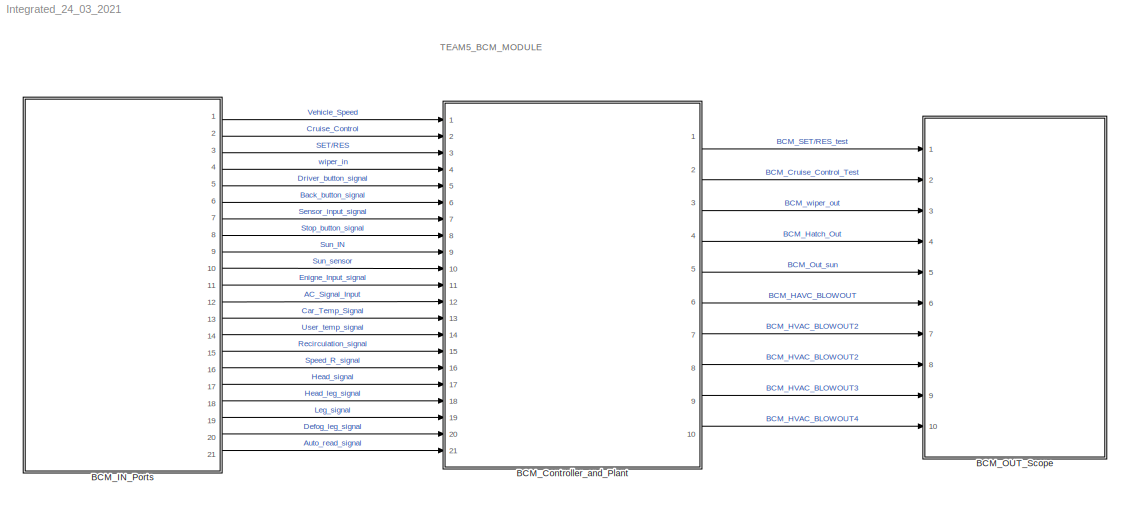
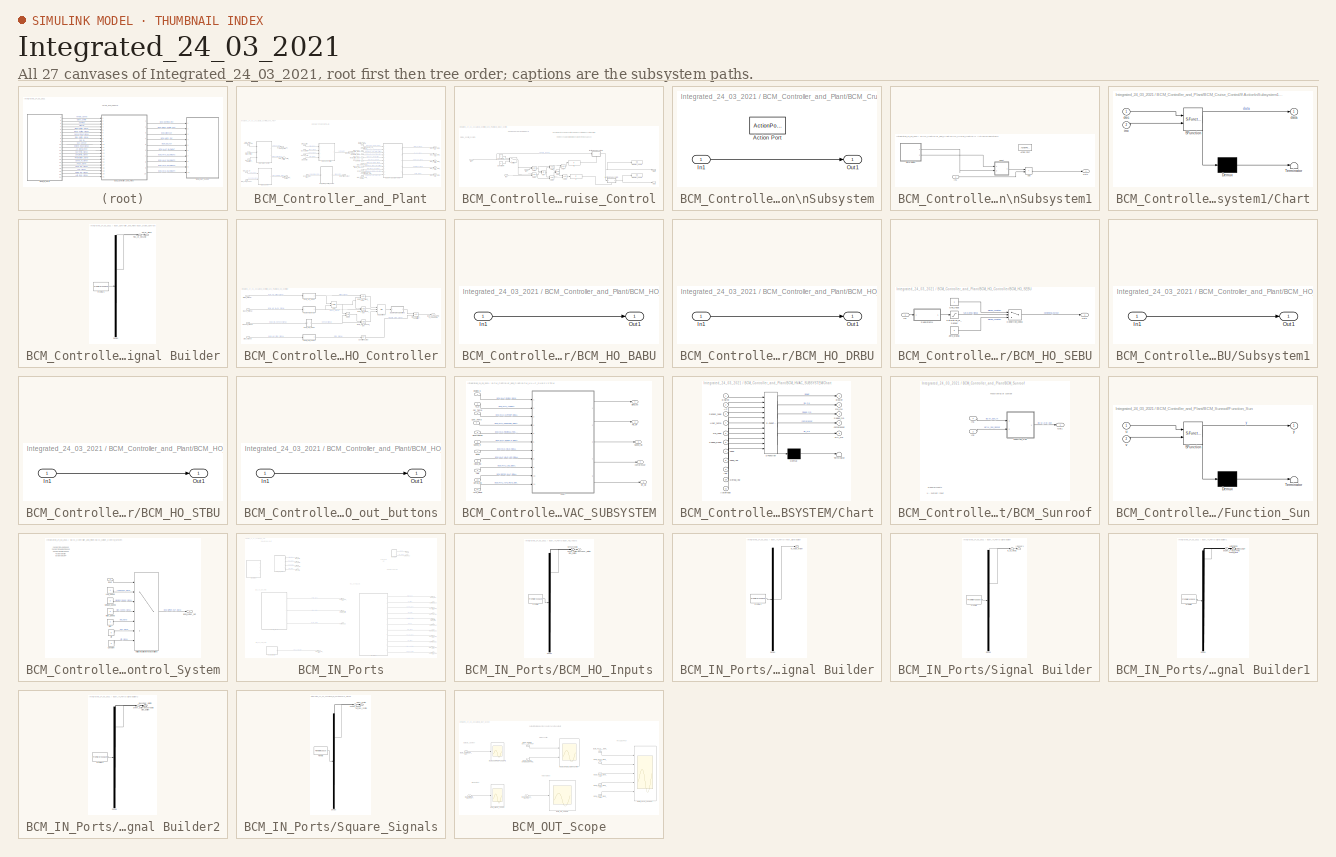
[diagram: thumbnail index - all 27 canvases of the model, root first then tree order]
MODEL Integrated_24_03_2021
KIND model
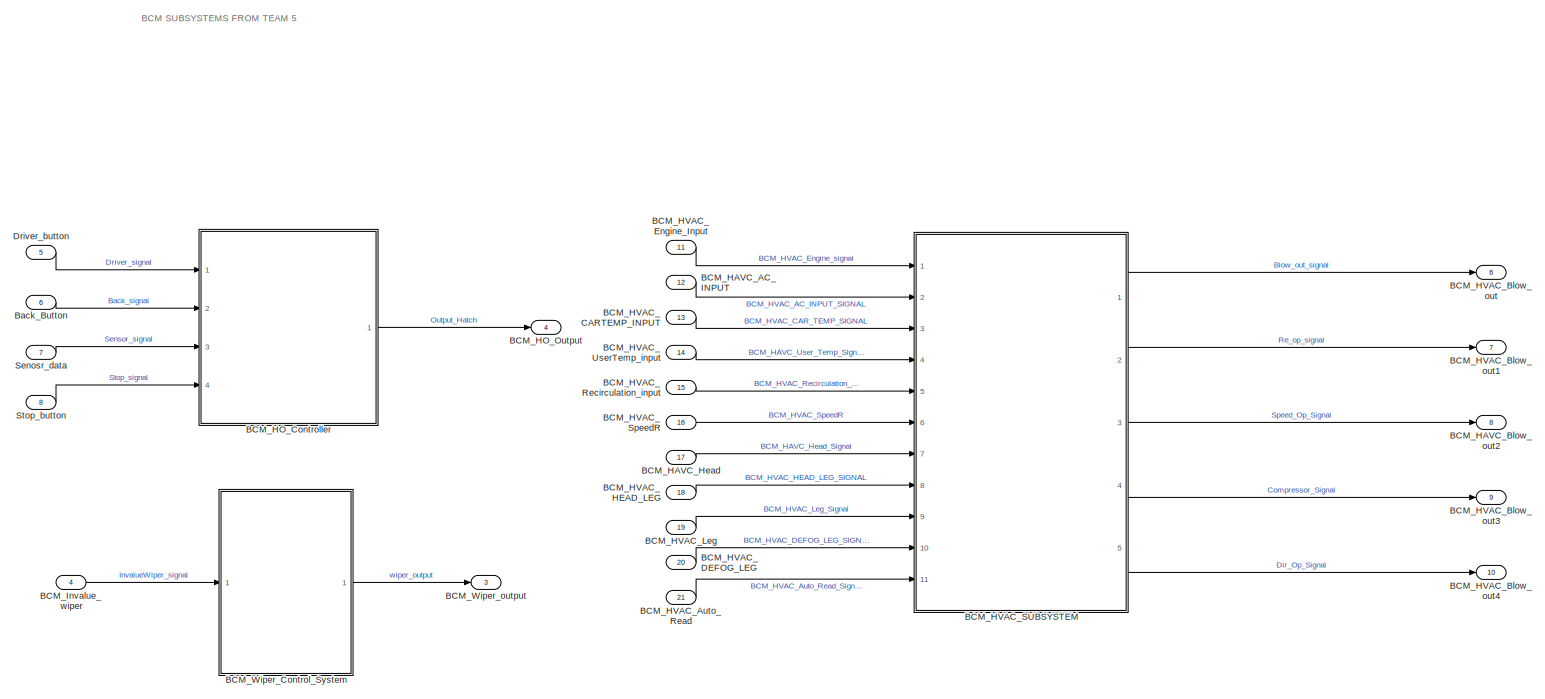
[diagram: BCM_Controller_and_Plant - part 1/2, center side, full height]
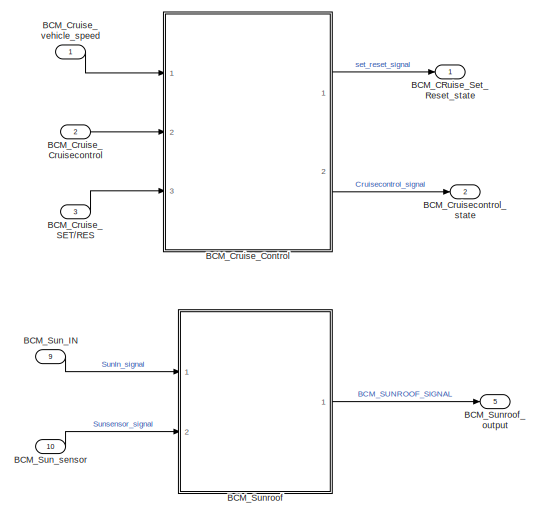
[diagram: BCM_Controller_and_Plant - part 2/2, middle left region]
BLOCK [SubSystem] BCM_Controller_and_Plant
  Ports = [21, 10]
  RequestExecContextInheritance = off
  SID = 199
BLOCK [Outport] BCM_Controller_and_Plant/BCM_CRuise_Set_Reset_state
  SID = 654
BLOCK [SubSystem] BCM_Controller_and_Plant/BCM_Cruise_Control
  Ports = [3, 2]
  RequestExecContextInheritance = off
  SID = 105
BLOCK [Logic] BCM_Controller_and_Plant/BCM_Cruise_Control/AND
  AllPortsSameDT = off
  IconShape = distinctive
  OutDataTypeStr = boolean
  Ports = [2, 1]
  SID = 37
BLOCK [Logic] BCM_Controller_and_Plant/BCM_Cruise_Control/AND1
  AllPortsSameDT = off
  IconShape = distinctive
  OutDataTypeStr = boolean
  Ports = [2, 1]
  SID = 38
BLOCK [Logic] BCM_Controller_and_Plant/BCM_Cruise_Control/AND2
  AllPortsSameDT = off
  IconShape = distinctive
  OutDataTypeStr = boolean
  Ports = [2, 1]
  SID = 39
BLOCK [Logic] BCM_Controller_and_Plant/BCM_Cruise_Control/AND3
  AllPortsSameDT = off
  IconShape = distinctive
  OutDataTypeStr = boolean
  Ports = [2, 1]
  SID = 40
BLOCK [Logic] BCM_Controller_and_Plant/BCM_Cruise_Control/AND4
  AllPortsSameDT = off
  IconShape = distinctive
  OutDataTypeStr = boolean
  Ports = [2, 1]
  SID = 85
BLOCK [Logic] BCM_Controller_and_Plant/BCM_Cruise_Control/AND5
  AllPortsSameDT = off
  IconShape = distinctive
  OutDataTypeStr = boolean
  Ports = [2, 1]
  SID = 86
BLOCK [Constant] BCM_Controller_and_Plant/BCM_Cruise_Control/Constant2
  SID = 50
BLOCK [Constant] BCM_Controller_and_Plant/BCM_Cruise_Control/Constant4
  SID = 44
  Value = 0
BLOCK [Display] BCM_Controller_and_Plant/BCM_Cruise_Control/Display_Test1
  Decimation = 1
  Ports = [1]
  SID = 76
BLOCK [Display] BCM_Controller_and_Plant/BCM_Cruise_Control/Display_Test2
  Decimation = 1
  Ports = [1]
  SID = 122
BLOCK [If] BCM_Controller_and_Plant/BCM_Cruise_Control/If
  IfExpression = u1 == 1
  Ports = [1, 1]
  SID = 57
  ShowElse = off
BLOCK [SubSystem] BCM_Controller_and_Plant/BCM_Cruise_Control/If Action\nSubsystem
  Ports = [1, 1, 0, 0, 0, 0, 0, 1]
  RequestExecContextInheritance = off
  SID = 59
  TreatAsAtomicUnit = on
BLOCK [ActionPort] BCM_Controller_and_Plant/BCM_Cruise_Control/If Action\nSubsystem/Action Port
  ActionPortLabel = if(u1 == 1)
  SID = 61
BLOCK [Inport] BCM_Controller_and_Plant/BCM_Cruise_Control/If Action\nSubsystem/In1
  SID = 60
BLOCK [Outport] BCM_Controller_and_Plant/BCM_Cruise_Control/If Action\nSubsystem/Out1
  SID = 62
BLOCK [SubSystem] BCM_Controller_and_Plant/BCM_Cruise_Control/If Action\nSubsystem1
  Ports = [1, 1, 0, 0, 0, 0, 0, 1]
  RequestExecContextInheritance = off
  SID = 64
  TreatAsAtomicUnit = on
BLOCK [ActionPort] BCM_Controller_and_Plant/BCM_Cruise_Control/If Action\nSubsystem1/Action Port
  ActionPortLabel = if(u1 == 1)
  SID = 66
BLOCK [Sum] BCM_Controller_and_Plant/BCM_Cruise_Control/If Action\nSubsystem1/Add
  IconShape = rectangular
  Ports = [2, 1]
  SID = 188
BLOCK [SubSystem] BCM_Controller_and_Plant/BCM_Cruise_Control/If Action\nSubsystem1/Chart
  ErrorFcn = Stateflow.Translate.translate
  PermitHierarchicalResolution = ExplicitOnly
  Ports = [2, 1]
  RequestExecContextInheritance = off
  SFBlockType = Chart
  SID = 171
  TreatAsAtomicUnit = on
BLOCK [Demux] BCM_Controller_and_Plant/BCM_Cruise_Control/If Action\nSubsystem1/Chart/ Demux 
  Outputs = 1
  Ports = [1, 1]
  SID = 171::114
BLOCK [S-Function] BCM_Controller_and_Plant/BCM_Cruise_Control/If Action\nSubsystem1/Chart/ SFunction 
  EnableBusSupport = on
  FunctionName = sf_sfun
  PortCounts = [2 2]
  Ports = [2, 2]
  SFcnIsStateOwnerBlock = off
  SFunctionDeploymentMode = off
  SID = 171::113
  Tag = Stateflow S-Function 1
BLOCK [Terminator] BCM_Controller_and_Plant/BCM_Cruise_Control/If Action\nSubsystem1/Chart/ Terminator 
  SID = 171::115
BLOCK [Outport] BCM_Controller_and_Plant/BCM_Cruise_Control/If Action\nSubsystem1/Chart/data
  SID = 171::106
BLOCK [Inport] BCM_Controller_and_Plant/BCM_Cruise_Control/If Action\nSubsystem1/Chart/dec
  SID = 171::101
BLOCK [Inport] BCM_Controller_and_Plant/BCM_Cruise_Control/If Action\nSubsystem1/Chart/inc
  Port = 2
  SID = 171::102
BLOCK [Inport] BCM_Controller_and_Plant/BCM_Cruise_Control/If Action\nSubsystem1/In1
  SID = 65
BLOCK [Outport] BCM_Controller_and_Plant/BCM_Cruise_Control/If Action\nSubsystem1/Out1
  SID = 67
BLOCK [SubSystem] BCM_Controller_and_Plant/BCM_Cruise_Control/If Action\nSubsystem1/Signal Builder
  ClipboardFcn = sigbuilder_block('clipboard');
  CloseFcn = sigbuilder_block('close');
  ContinueFcn = sigbuilder_block('continue');
  CopyFcn = sigbuilder_block('copy');
  DeleteFcn = sigbuilder_block('delete');
  LoadFcn = sigbuilder_block('load');
  MaskHideContents = on
  ModelCloseFcn = sigbuilder_block('modelClose');
  NameChangeFcn = sigbuilder_block('namechange');
  OpenFcn = sigbuilder_block('open',[0.75 30.75 718.5 715.5 ]);
  PauseFcn = sigbuilder_block('pause');
  Ports = [0, 2]
  PreSaveFcn = sigbuilder_block('preSave');
  RequestExecContextInheritance = off
  SID = 259
  StartFcn = sigbuilder_block('start');
  StopFcn = sigbuilder_block('stop');
  Tag = STV Subsys
BLOCK [Demux] BCM_Controller_and_Plant/BCM_Cruise_Control/If Action\nSubsystem1/Signal Builder/Demux
  DisplayOption = none
  Outputs = 2
  Ports = [1, 2]
  SID = 259:1
  Tag = STV Demux
BLOCK [FromWorkspace] BCM_Controller_and_Plant/BCM_Cruise_Control/If Action\nSubsystem1/Signal Builder/FromWs
  SID = 259:2
  SigBuilderData = DataTag0
  Tag = STV FromWs
  VariableName = tuvar
  VnvData = DataTag1
BLOCK [Outport] BCM_Controller_and_Plant/BCM_Cruise_Control/If Action\nSubsystem1/Signal Builder/Plus_Or_Resume
  SID = 259:4
  Tag = STV Outport
BLOCK [Outport] BCM_Controller_and_Plant/BCM_Cruise_Control/If Action\nSubsystem1/Signal Builder/Set_Or_Minus
  Port = 2
  SID = 259:5
  Tag = STV Outport
BLOCK [If] BCM_Controller_and_Plant/BCM_Cruise_Control/If1
  IfExpression = u1 == 1
  Ports = [1, 1]
  SID = 63
  ShowElse = off
BLOCK [Inport] BCM_Controller_and_Plant/BCM_Cruise_Control/In1
  SID = 646
BLOCK [Inport] BCM_Controller_and_Plant/BCM_Cruise_Control/In2
  Port = 2
  SID = 647
BLOCK [Inport] BCM_Controller_and_Plant/BCM_Cruise_Control/In3
  Port = 3
  SID = 648
BLOCK [Logic] BCM_Controller_and_Plant/BCM_Cruise_Control/OR
  AllPortsSameDT = off
  IconShape = distinctive
  Operator = OR
  OutDataTypeStr = boolean
  Ports = [2, 1]
  SID = 36
BLOCK [Outport] BCM_Controller_and_Plant/BCM_Cruise_Control/Out1
  SID = 652
BLOCK [Outport] BCM_Controller_and_Plant/BCM_Cruise_Control/Out2
  Port = 2
  SID = 653
BLOCK [Switch] BCM_Controller_and_Plant/BCM_Cruise_Control/Switch
  InputSameDT = off
  SID = 41
  SaturateOnIntegerOverflow = off
  Threshold = 40
BLOCK [Logic] BCM_Controller_and_Plant/BCM_Cruise_Control/XOR
  AllPortsSameDT = off
  IconShape = distinctive
  Operator = XOR
  OutDataTypeStr = boolean
  Ports = [2, 1]
  SID = 84
BLOCK [Inport] BCM_Controller_and_Plant/BCM_Cruise_Cruisecontrol
  Port = 2
  SID = 650
BLOCK [Inport] BCM_Controller_and_Plant/BCM_Cruise_SET//RES
  Port = 3
  SID = 651
BLOCK [Inport] BCM_Controller_and_Plant/BCM_Cruise_vehicle_speed
  SID = 649
BLOCK [Outport] BCM_Controller_and_Plant/BCM_Cruisecontrol_state
  Port = 2
  SID = 655
BLOCK [Inport] BCM_Controller_and_Plant/BCM_HAVC_AC_INPUT
  Port = 12
  SID = 899
BLOCK [Outport] BCM_Controller_and_Plant/BCM_HAVC_Blow_out2
  Port = 8
  SID = 912
BLOCK [Inport] BCM_Controller_and_Plant/BCM_HAVC_Head
  Port = 17
  SID = 904
BLOCK [SubSystem] BCM_Controller_and_Plant/BCM_HO_Controller
  Ports = [4, 1]
  RequestExecContextInheritance = off
  SID = 832
BLOCK [Outport] BCM_Controller_and_Plant/BCM_HO_Controller/BCM_HATCHOPEN_CONDITION
  SID = 867
BLOCK [SubSystem] BCM_Controller_and_Plant/BCM_HO_Controller/BCM_HO_BABU
  Ports = [1, 1]
  RequestExecContextInheritance = off
  SID = 840
BLOCK [Inport] BCM_Controller_and_Plant/BCM_HO_Controller/BCM_HO_BABU/In1
  SID = 841
BLOCK [Outport] BCM_Controller_and_Plant/BCM_HO_Controller/BCM_HO_BABU/Out1
  SID = 842
BLOCK [Logic] BCM_Controller_and_Plant/BCM_HO_Controller/BCM_HO_Back_out
  AllPortsSameDT = off
  IconShape = distinctive
  OutDataTypeStr = boolean
  Ports = [2, 1]
  SID = 839
BLOCK [SubSystem] BCM_Controller_and_Plant/BCM_HO_Controller/BCM_HO_DRBU
  Ports = [1, 1]
  RequestExecContextInheritance = off
  SID = 843
BLOCK [Inport] BCM_Controller_and_Plant/BCM_HO_Controller/BCM_HO_DRBU/In1
  SID = 844
BLOCK [Outport] BCM_Controller_and_Plant/BCM_HO_Controller/BCM_HO_DRBU/Out1
  SID = 845
BLOCK [Logic] BCM_Controller_and_Plant/BCM_HO_Controller/BCM_HO_Driver_out
  AllPortsSameDT = off
  IconShape = distinctive
  OutDataTypeStr = boolean
  Ports = [2, 1]
  SID = 837
BLOCK [SubSystem] BCM_Controller_and_Plant/BCM_HO_Controller/BCM_HO_SEBU
  Ports = [1, 1]
  RequestExecContextInheritance = off
  SID = 846
BLOCK [Switch] BCM_Controller_and_Plant/BCM_HO_Controller/BCM_HO_SEBU/Condition_check
  Criteria = u2 > Threshold
  InputSameDT = off
  SID = 854
  SaturateOnIntegerOverflow = off
  Threshold = 2.3
BLOCK [Inport] BCM_Controller_and_Plant/BCM_HO_Controller/BCM_HO_SEBU/In1
  SID = 847
BLOCK [Constant] BCM_Controller_and_Plant/BCM_HO_Controller/BCM_HO_SEBU/One_input
  SID = 848
BLOCK [Outport] BCM_Controller_and_Plant/BCM_HO_Controller/BCM_HO_SEBU/Out1
  SID = 855
BLOCK [Saturate] BCM_Controller_and_Plant/BCM_HO_Controller/BCM_HO_SEBU/Saturation_of_Sensor
  LowerLimit = 0
  SID = 850
  UpperLimit = 3.6
BLOCK [SubSystem] BCM_Controller_and_Plant/BCM_HO_Controller/BCM_HO_SEBU/Subsystem1
  Ports = [1, 1]
  RequestExecContextInheritance = off
  SID = 851
BLOCK [Inport] BCM_Controller_and_Plant/BCM_HO_Controller/BCM_HO_SEBU/Subsystem1/In1
  SID = 852
BLOCK [Outport] BCM_Controller_and_Plant/BCM_HO_Controller/BCM_HO_SEBU/Subsystem1/Out1
  SID = 853
BLOCK [Constant] BCM_Controller_and_Plant/BCM_HO_Controller/BCM_HO_SEBU/Zero_signal
  SID = 849
  Value = 0
BLOCK [SubSystem] BCM_Controller_and_Plant/BCM_HO_Controller/BCM_HO_STBU
  Ports = [1, 1]
  RequestExecContextInheritance = off
  SID = 856
BLOCK [Inport] BCM_Controller_and_Plant/BCM_HO_Controller/BCM_HO_STBU/In1
  SID = 857
BLOCK [Outport] BCM_Controller_and_Plant/BCM_HO_Controller/BCM_HO_STBU/Out1
  SID = 858
BLOCK [Logic] BCM_Controller_and_Plant/BCM_HO_Controller/BCM_HO_Sensor_Out
  AllPortsSameDT = off
  IconShape = distinctive
  OutDataTypeStr = boolean
  Ports = [2, 1]
  SID = 838
BLOCK [SubSystem] BCM_Controller_and_Plant/BCM_HO_Controller/BCM_HO_out_buttons
  Ports = [1, 1]
  RequestExecContextInheritance = off
  SID = 864
BLOCK [Inport] BCM_Controller_and_Plant/BCM_HO_Controller/BCM_HO_out_buttons/In1
  SID = 865
BLOCK [Outport] BCM_Controller_and_Plant/BCM_HO_Controller/BCM_HO_out_buttons/Out1
  SID = 866
BLOCK [Inport] BCM_Controller_and_Plant/BCM_HO_Controller/Back_Signal
  Port = 2
  SID = 834
BLOCK [Logic] BCM_Controller_and_Plant/BCM_HO_Controller/Condition_Stop
  AllPortsSameDT = off
  IconShape = distinctive
  Operator = NOT
  OutDataTypeStr = boolean
  Ports = [1, 1]
  SID = 859
BLOCK [Inport] BCM_Controller_and_Plant/BCM_HO_Controller/Driver_Signal
  SID = 833
BLOCK [Logic] BCM_Controller_and_Plant/BCM_HO_Controller/Out_Buttons
  AllPortsSameDT = off
  IconShape = distinctive
  Inputs = 3
  Operator = OR
  OutDataTypeStr = boolean
  Ports = [3, 1]
  SID = 860
BLOCK [Inport] BCM_Controller_and_Plant/BCM_HO_Controller/Sensor_signal
  Port = 3
  SID = 835
BLOCK [Logic] BCM_Controller_and_Plant/BCM_HO_Controller/Stop_button_condition
  AllPortsSameDT = off
  IconShape = distinctive
  OutDataTypeStr = boolean
  Ports = [2, 1]
  SID = 861
BLOCK [Inport] BCM_Controller_and_Plant/BCM_HO_Controller/Stop_signal
  Port = 4
  SID = 836
BLOCK [Logic] BCM_Controller_and_Plant/BCM_HO_Controller/XOR
  AllPortsSameDT = off
  IconShape = distinctive
  Operator = XOR
  OutDataTypeStr = boolean
  Ports = [2, 1]
  SID = 862
BLOCK [Logic] BCM_Controller_and_Plant/BCM_HO_Controller/XOR1
  AllPortsSameDT = off
  IconShape = distinctive
  Operator = XOR
  OutDataTypeStr = boolean
  Ports = [2, 1]
  SID = 863
BLOCK [Outport] BCM_Controller_and_Plant/BCM_HO_Output
  Port = 4
  SID = 714
BLOCK [Inport] BCM_Controller_and_Plant/BCM_HVAC_Auto_Read
  Port = 21
  SID = 908
BLOCK [Outport] BCM_Controller_and_Plant/BCM_HVAC_Blow_out
  Port = 6
  SID = 909
BLOCK [Outport] BCM_Controller_and_Plant/BCM_HVAC_Blow_out1
  Port = 7
  SID = 911
BLOCK [Outport] BCM_Controller_and_Plant/BCM_HVAC_Blow_out3
  Port = 9
  SID = 913
BLOCK [Outport] BCM_Controller_and_Plant/BCM_HVAC_Blow_out4
  Port = 10
  SID = 914
BLOCK [Inport] BCM_Controller_and_Plant/BCM_HVAC_CARTEMP_INPUT
  Port = 13
  SID = 900
BLOCK [Inport] BCM_Controller_and_Plant/BCM_HVAC_DEFOG_LEG
  Port = 20
  SID = 907
BLOCK [Inport] BCM_Controller_and_Plant/BCM_HVAC_Engine_Input
  Port = 11
  SID = 898
BLOCK [Inport] BCM_Controller_and_Plant/BCM_HVAC_HEAD_LEG
  Port = 18
  SID = 905
BLOCK [Inport] BCM_Controller_and_Plant/BCM_HVAC_Leg
  Port = 19
  SID = 906
BLOCK [Inport] BCM_Controller_and_Plant/BCM_HVAC_Recirculation_input
  Port = 15
  SID = 902
BLOCK [SubSystem] BCM_Controller_and_Plant/BCM_HVAC_SUBSYSTEM
  Ports = [11, 5]
  RequestExecContextInheritance = off
  SID = 880
BLOCK [Inport] BCM_Controller_and_Plant/BCM_HVAC_SUBSYSTEM/AC_S
  Port = 2
  SID = 882
BLOCK [Inport] BCM_Controller_and_Plant/BCM_HVAC_SUBSYSTEM/Auto_Read
  Port = 11
  SID = 891
BLOCK [Outport] BCM_Controller_and_Plant/BCM_HVAC_SUBSYSTEM/Blow_out
  SID = 893
BLOCK [Inport] BCM_Controller_and_Plant/BCM_HVAC_SUBSYSTEM/Car_Temp
  Port = 3
  SID = 883
BLOCK [SubSystem] BCM_Controller_and_Plant/BCM_HVAC_SUBSYSTEM/Chart
  ErrorFcn = Stateflow.Translate.translate
  PermitHierarchicalResolution = ExplicitOnly
  Ports = [11, 5]
  RequestExecContextInheritance = off
  SFBlockType = Chart
  SID = 892
  TreatAsAtomicUnit = on
BLOCK [Demux] BCM_Controller_and_Plant/BCM_HVAC_SUBSYSTEM/Chart/ Demux 
  Outputs = 1
  Ports = [1, 1]
  SID = 892::121
BLOCK [S-Function] BCM_Controller_and_Plant/BCM_HVAC_SUBSYSTEM/Chart/ SFunction 
  EnableBusSupport = on
  FunctionName = sf_sfun
  PortCounts = [11 6]
  Ports = [11, 6]
  SFcnIsStateOwnerBlock = off
  SFunctionDeploymentMode = off
  SID = 892::120
  Tag = Stateflow S-Function 3
BLOCK [Terminator] BCM_Controller_and_Plant/BCM_HVAC_SUBSYSTEM/Chart/ Terminator 
  SID = 892::122
BLOCK [Inport] BCM_Controller_and_Plant/BCM_HVAC_SUBSYSTEM/Chart/AC
  Port = 2
  SID = 892::102
BLOCK [Inport] BCM_Controller_and_Plant/BCM_HVAC_SUBSYSTEM/Chart/AutoRead
  Port = 11
  SID = 892::119
BLOCK [Inport] BCM_Controller_and_Plant/BCM_HVAC_SUBSYSTEM/Chart/Defog_leg
  Port = 10
  SID = 892::115
BLOCK [Outport] BCM_Controller_and_Plant/BCM_HVAC_SUBSYSTEM/Chart/Dir_Op
  Port = 5
  SID = 892::116
BLOCK [Inport] BCM_Controller_and_Plant/BCM_HVAC_SUBSYSTEM/Chart/Engine
  SID = 892::101
BLOCK [Outport] BCM_Controller_and_Plant/BCM_HVAC_SUBSYSTEM/Chart/Re_Op
  Port = 2
  SID = 892::107
BLOCK [Inport] BCM_Controller_and_Plant/BCM_HVAC_SUBSYSTEM/Chart/Re_read
  Port = 5
  SID = 892::106
BLOCK [Inport] BCM_Controller_and_Plant/BCM_HVAC_SUBSYSTEM/Chart/Sensor_read
  Port = 3
  SID = 892::104
BLOCK [Outport] BCM_Controller_and_Plant/BCM_HVAC_SUBSYSTEM/Chart/Speed_Op
  Port = 3
  SID = 892::108
BLOCK [Inport] BCM_Controller_and_Plant/BCM_HVAC_SUBSYSTEM/Chart/Speed_Read
  Port = 6
  SID = 892::109
BLOCK [Inport] BCM_Controller_and_Plant/BCM_HVAC_SUBSYSTEM/Chart/User_temp
  Port = 4
  SID = 892::105
BLOCK [Outport] BCM_Controller_and_Plant/BCM_HVAC_SUBSYSTEM/Chart/blower
  SID = 892::103
BLOCK [Outport] BCM_Controller_and_Plant/BCM_HVAC_SUBSYSTEM/Chart/compressor
  Port = 4
  SID = 892::110
BLOCK [Inport] BCM_Controller_and_Plant/BCM_HVAC_SUBSYSTEM/Chart/head
  Port = 7
  SID = 892::112
BLOCK [Inport] BCM_Controller_and_Plant/BCM_HVAC_SUBSYSTEM/Chart/head_leg
  Port = 8
  SID = 892::113
BLOCK [Inport] BCM_Controller_and_Plant/BCM_HVAC_SUBSYSTEM/Chart/leg
  Port = 9
  SID = 892::114
BLOCK [Inport] BCM_Controller_and_Plant/BCM_HVAC_SUBSYSTEM/Defog_leg
  Port = 10
  SID = 890
BLOCK [Inport] BCM_Controller_and_Plant/BCM_HVAC_SUBSYSTEM/Engine_S
  SID = 881
BLOCK [Inport] BCM_Controller_and_Plant/BCM_HVAC_SUBSYSTEM/Head
  Port = 7
  SID = 887
BLOCK [Inport] BCM_Controller_and_Plant/BCM_HVAC_SUBSYSTEM/Head_leg
  Port = 8
  SID = 888
BLOCK [Inport] BCM_Controller_and_Plant/BCM_HVAC_SUBSYSTEM/Leg
  Port = 9
  SID = 889
BLOCK [Outport] BCM_Controller_and_Plant/BCM_HVAC_SUBSYSTEM/Re_OP
  Port = 2
  SID = 894
BLOCK [Inport] BCM_Controller_and_Plant/BCM_HVAC_SUBSYSTEM/Recirculation
  Port = 5
  SID = 885
BLOCK [Outport] BCM_Controller_and_Plant/BCM_HVAC_SUBSYSTEM/Speed_Op
  Port = 3
  SID = 895
BLOCK [Inport] BCM_Controller_and_Plant/BCM_HVAC_SUBSYSTEM/Speed_R
  Port = 6
  SID = 886
BLOCK [Inport] BCM_Controller_and_Plant/BCM_HVAC_SUBSYSTEM/User_Temp
  Port = 4
  SID = 884
BLOCK [Outport] BCM_Controller_and_Plant/BCM_HVAC_SUBSYSTEM/compressor
  Port = 4
  SID = 896
BLOCK [Outport] BCM_Controller_and_Plant/BCM_HVAC_SUBSYSTEM/dir_Op
  Port = 5
  SID = 897
BLOCK [Inport] BCM_Controller_and_Plant/BCM_HVAC_SpeedR
  Port = 16
  SID = 903
BLOCK [Inport] BCM_Controller_and_Plant/BCM_HVAC_UserTemp_input
  Port = 14
  SID = 901
BLOCK [Inport] BCM_Controller_and_Plant/BCM_Invalue_wiper
  Port = 4
  SID = 678
BLOCK [Inport] BCM_Controller_and_Plant/BCM_Sun_IN
  Port = 9
  SID = 798
BLOCK [Inport] BCM_Controller_and_Plant/BCM_Sun_sensor
  Port = 10
  SID = 799
BLOCK [SubSystem] BCM_Controller_and_Plant/BCM_Sunroof
  Ports = [2, 1]
  RequestExecContextInheritance = off
  SID = 787
BLOCK [SubSystem] BCM_Controller_and_Plant/BCM_Sunroof/Function_Sun
  ErrorFcn = Stateflow.Translate.translate
  PermitHierarchicalResolution = ExplicitOnly
  Ports = [2, 1]
  RequestExecContextInheritance = off
  SFBlockType = MATLAB Function
  SID = 790
  TreatAsAtomicUnit = on
BLOCK [Demux] BCM_Controller_and_Plant/BCM_Sunroof/Function_Sun/ Demux 
  Outputs = 1
  Ports = [1, 1]
  SID = 790::25
BLOCK [S-Function] BCM_Controller_and_Plant/BCM_Sunroof/Function_Sun/ SFunction 
  EnableBusSupport = on
  FunctionName = sf_sfun
  PortCounts = [2 2]
  Ports = [2, 2]
  SFcnIsStateOwnerBlock = off
  SFunctionDeploymentMode = off
  SID = 790::24
  Tag = Stateflow S-Function 2
BLOCK [Terminator] BCM_Controller_and_Plant/BCM_Sunroof/Function_Sun/ Terminator 
  SID = 790::26
BLOCK [Inport] BCM_Controller_and_Plant/BCM_Sunroof/Function_Sun/u
  SID = 790::1
BLOCK [Inport] BCM_Controller_and_Plant/BCM_Sunroof/Function_Sun/v
  Port = 2
  SID = 790::22
BLOCK [Outport] BCM_Controller_and_Plant/BCM_Sunroof/Function_Sun/y
  SID = 790::5
BLOCK [Inport] BCM_Controller_and_Plant/BCM_Sunroof/In1
  SID = 794
BLOCK [Inport] BCM_Controller_and_Plant/BCM_Sunroof/In2
  Port = 2
  SID = 795
BLOCK [Outport] BCM_Controller_and_Plant/BCM_Sunroof/Out1
  SID = 796
BLOCK [Outport] BCM_Controller_and_Plant/BCM_Sunroof_output
  Port = 5
  SID = 797
BLOCK [SubSystem] BCM_Controller_and_Plant/BCM_Wiper_Control_System
  Ports = [1, 1]
  RequestExecContextInheritance = off
  SID = 819
BLOCK [Outport] BCM_Controller_and_Plant/BCM_Wiper_Control_System/BCM_Wiper_Out
  SID = 831
BLOCK [Constant] BCM_Controller_and_Plant/BCM_Wiper_Control_System/Constant
  SID = 820
  Value = 0
BLOCK [Constant] BCM_Controller_and_Plant/BCM_Wiper_Control_System/High_Speed
  SID = 821
  Value = 3
BLOCK [Inport] BCM_Controller_and_Plant/BCM_Wiper_Control_System/Input
  SID = 830
BLOCK [Constant] BCM_Controller_and_Plant/BCM_Wiper_Control_System/Low_Speed
  SID = 822
BLOCK [Constant] BCM_Controller_and_Plant/BCM_Wiper_Control_System/Medium_Speed
  SID = 823
  Value = 2
BLOCK [Constant] BCM_Controller_and_Plant/BCM_Wiper_Control_System/Mist
  SID = 824
  Value = 4
BLOCK [MultiPortSwitch] BCM_Controller_and_Plant/BCM_Wiper_Control_System/Multiport\nSwitch for input conditions
  DiagnosticForDefault = None
  InputSameDT = off
  Inputs = 6
  Ports = [7, 1]
  SID = 825
  SaturateOnIntegerOverflow = off
BLOCK [Constant] BCM_Controller_and_Plant/BCM_Wiper_Control_System/Off
  SID = 826
  Value = 5
BLOCK [Outport] BCM_Controller_and_Plant/BCM_Wiper_output
  Port = 3
  SID = 679
BLOCK [Inport] BCM_Controller_and_Plant/Back_Button
  Port = 6
  SID = 711
BLOCK [Inport] BCM_Controller_and_Plant/Driver_button
  Port = 5
  SID = 710
BLOCK [Inport] BCM_Controller_and_Plant/Senosr_data
  Port = 7
  SID = 712
BLOCK [Inport] BCM_Controller_and_Plant/Stop_button
  Port = 8
  SID = 713
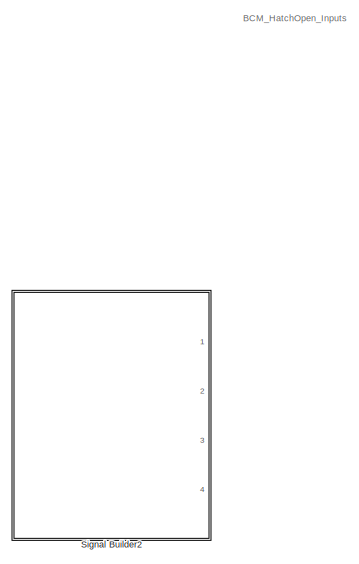
[diagram: BCM_IN_Ports - part 1/6, top left region]
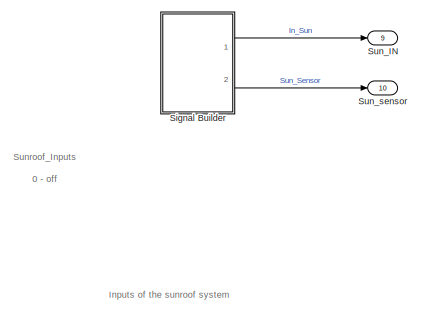
[diagram: BCM_IN_Ports - part 2/6, top right region]
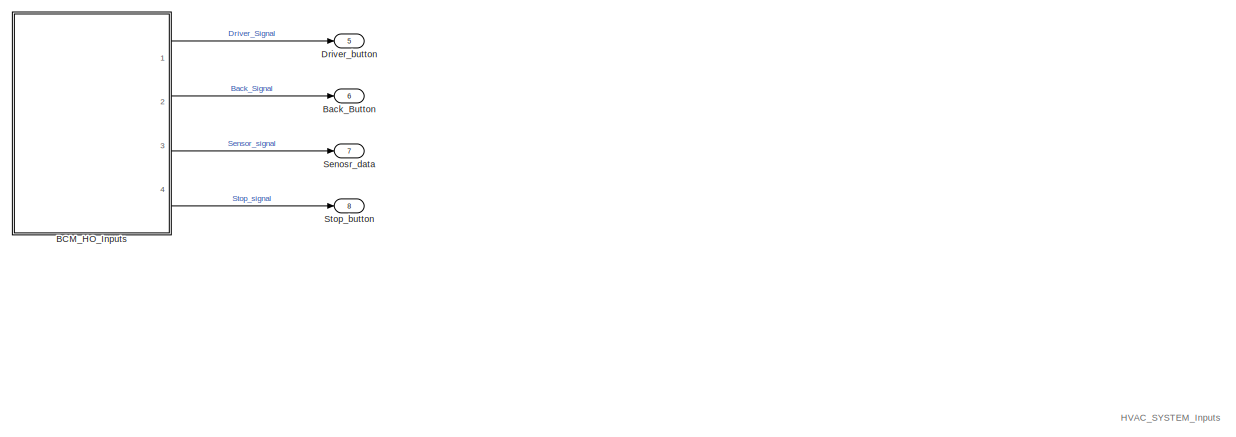
[diagram: BCM_IN_Ports - part 3/6, top center region]
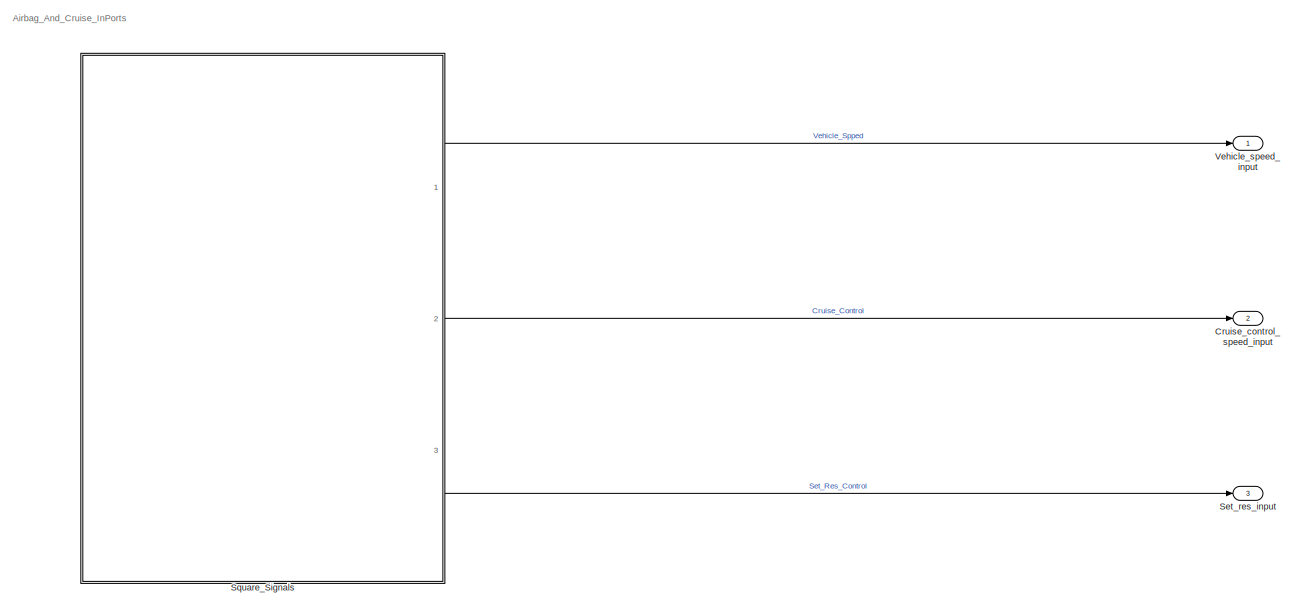
[diagram: BCM_IN_Ports - part 4/6, middle left region]
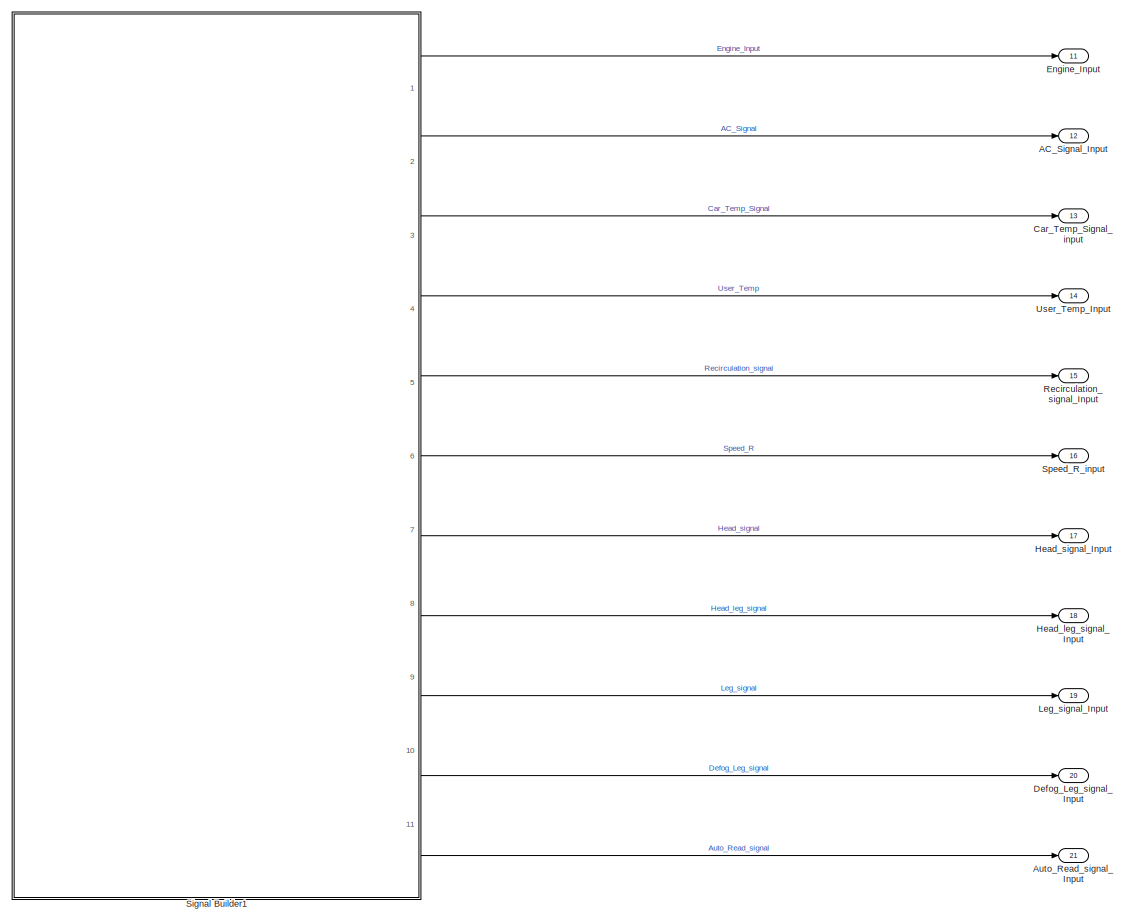
[diagram: BCM_IN_Ports - part 5/6, bottom right region]
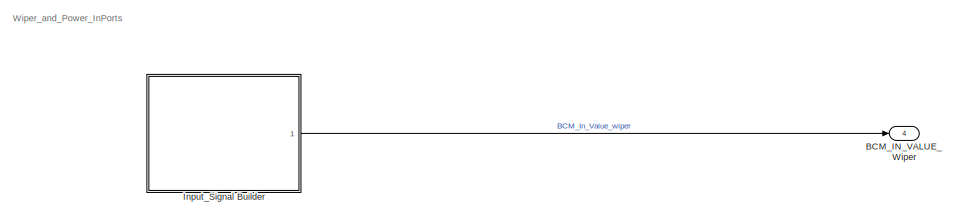
[diagram: BCM_IN_Ports - part 6/6, bottom left region]
BLOCK [SubSystem] BCM_IN_Ports
  Ports = [0, 21]
  RequestExecContextInheritance = off
  SID = 200
BLOCK [Outport] BCM_IN_Ports/AC_Signal_Input
  Port = 12
  SID = 870
BLOCK [Outport] BCM_IN_Ports/Auto_Read_signal_Input
  Port = 21
  SID = 879
BLOCK [SubSystem] BCM_IN_Ports/BCM_HO_Inputs
  ClipboardFcn = sigbuilder_block('clipboard');
  CloseFcn = sigbuilder_block('close');
  ContinueFcn = sigbuilder_block('continue');
  CopyFcn = sigbuilder_block('copy');
  DeleteFcn = sigbuilder_block('delete');
  LoadFcn = sigbuilder_block('load');
  MaskHideContents = on
  ModelCloseFcn = sigbuilder_block('modelClose');
  NameChangeFcn = sigbuilder_block('namechange');
  OpenFcn = sigbuilder_block('open',[437.6 199.2 550.4 400 ]);
  PauseFcn = sigbuilder_block('pause');
  Ports = [0, 4]
  PreSaveFcn = sigbuilder_block('preSave');
  RequestExecContextInheritance = off
  SID = 728
  StartFcn = sigbuilder_block('start');
  StopFcn = sigbuilder_block('stop');
  Tag = STV Subsys
BLOCK [Outport] BCM_IN_Ports/BCM_HO_Inputs/BackDoor_Button
  Port = 2
  SID = 728:13
  Tag = STV Outport
BLOCK [Demux] BCM_IN_Ports/BCM_HO_Inputs/Demux
  DisplayOption = none
  Ports = [1, 4]
  SID = 728:1
  Tag = STV Demux
BLOCK [Outport] BCM_IN_Ports/BCM_HO_Inputs/Driver_button
  SID = 728:12
  Tag = STV Outport
BLOCK [FromWorkspace] BCM_IN_Ports/BCM_HO_Inputs/FromWs
  SID = 728:2
  SigBuilderData = DataTag2
  Tag = STV FromWs
  VariableName = tuvar
  VnvData = DataTag3
BLOCK [Outport] BCM_IN_Ports/BCM_HO_Inputs/Sensore Data
  Port = 3
  SID = 728:10
  Tag = STV Outport
BLOCK [Outport] BCM_IN_Ports/BCM_HO_Inputs/Stop_Button
  Port = 4
  SID = 728:15
  Tag = STV Outport
BLOCK [Outport] BCM_IN_Ports/BCM_IN_VALUE_Wiper
  Port = 4
  SID = 669
BLOCK [Outport] BCM_IN_Ports/Back_Button
  Port = 6
  SID = 731
BLOCK [Outport] BCM_IN_Ports/Car_Temp_Signal_input
  Port = 13
  SID = 871
BLOCK [Outport] BCM_IN_Ports/Cruise_control_speed_input
  Port = 2
  SID = 644
BLOCK [Outport] BCM_IN_Ports/Defog_Leg_signal_Input
  Port = 20
  SID = 878
BLOCK [Outport] BCM_IN_Ports/Driver_button
  Port = 5
  SID = 730
BLOCK [Outport] BCM_IN_Ports/Engine_Input
  Port = 11
  SID = 869
BLOCK [Outport] BCM_IN_Ports/Head_leg_signal_Input
  Port = 18
  SID = 876
BLOCK [Outport] BCM_IN_Ports/Head_signal_Input
  Port = 17
  SID = 875
BLOCK [SubSystem] BCM_IN_Ports/Input_Signal Builder
  ClipboardFcn = sigbuilder_block('clipboard');
  CloseFcn = sigbuilder_block('close');
  ContinueFcn = sigbuilder_block('continue');
  CopyFcn = sigbuilder_block('copy');
  DeleteFcn = sigbuilder_block('delete');
  LoadFcn = sigbuilder_block('load');
  MaskHideContents = on
  ModelCloseFcn = sigbuilder_block('modelClose');
  NameChangeFcn = sigbuilder_block('namechange');
  OpenFcn = sigbuilder_block('open',[339 188.25 550.5 359.25 ]);
  PauseFcn = sigbuilder_block('pause');
  Ports = [0, 1]
  PreSaveFcn = sigbuilder_block('preSave');
  RequestExecContextInheritance = off
  SID = 807
  StartFcn = sigbuilder_block('start');
  StopFcn = sigbuilder_block('stop');
  Tag = STV Subsys
BLOCK [Demux] BCM_IN_Ports/Input_Signal Builder/Demux
  DisplayOption = none
  Outputs = 1
  Ports = [1, 1]
  SID = 807:1
  Tag = STV Demux
BLOCK [FromWorkspace] BCM_IN_Ports/Input_Signal Builder/FromWs
  SID = 807:2
  SigBuilderData = DataTag4
  Tag = STV FromWs
  VariableName = tuvar
  VnvData = DataTag5
BLOCK [Outport] BCM_IN_Ports/Input_Signal Builder/In_Value_Wiper
  SID = 807:7
  Tag = STV Outport
BLOCK [Outport] BCM_IN_Ports/Leg_signal_Input
  Port = 19
  SID = 877
BLOCK [Outport] BCM_IN_Ports/Recirculation_signal_Input
  Port = 15
  SID = 873
BLOCK [Outport] BCM_IN_Ports/Senosr_data
  Port = 7
  SID = 732
BLOCK [Outport] BCM_IN_Ports/Set_res_input
  Port = 3
  SID = 645
BLOCK [SubSystem] BCM_IN_Ports/Signal Builder
  ClipboardFcn = sigbuilder_block('clipboard');
  CloseFcn = sigbuilder_block('close');
  ContinueFcn = sigbuilder_block('continue');
  CopyFcn = sigbuilder_block('copy');
  DeleteFcn = sigbuilder_block('delete');
  LoadFcn = sigbuilder_block('load');
  MaskHideContents = on
  ModelCloseFcn = sigbuilder_block('modelClose');
  NameChangeFcn = sigbuilder_block('namechange');
  OpenFcn = sigbuilder_block('open',[534 -108 550.5 359.25 ]);
  PauseFcn = sigbuilder_block('pause');
  Ports = [0, 2]
  PreSaveFcn = sigbuilder_block('preSave');
  RequestExecContextInheritance = off
  SID = 779
  StartFcn = sigbuilder_block('start');
  StopFcn = sigbuilder_block('stop');
  Tag = STV Subsys
BLOCK [Demux] BCM_IN_Ports/Signal Builder/Demux
  DisplayOption = none
  Outputs = 2
  Ports = [1, 2]
  SID = 779:1
  Tag = STV Demux
BLOCK [FromWorkspace] BCM_IN_Ports/Signal Builder/FromWs
  SID = 779:2
  SigBuilderData = DataTag6
  Tag = STV FromWs
  VariableName = tuvar
  VnvData = DataTag7
BLOCK [Outport] BCM_IN_Ports/Signal Builder/I_Sensor1
  Port = 2
  SID = 779:7
  Tag = STV Outport
BLOCK [Outport] BCM_IN_Ports/Signal Builder/In_Su_Roof1
  SID = 779:6
  Tag = STV Outport
BLOCK [SubSystem] BCM_IN_Ports/Signal Builder1
  ClipboardFcn = sigbuilder_block('clipboard');
  CloseFcn = sigbuilder_block('close');
  ContinueFcn = sigbuilder_block('continue');
  CopyFcn = sigbuilder_block('copy');
  DeleteFcn = sigbuilder_block('delete');
  LoadFcn = sigbuilder_block('load');
  MaskHideContents = on
  ModelCloseFcn = sigbuilder_block('modelClose');
  NameChangeFcn = sigbuilder_block('namechange');
  OpenFcn = sigbuilder_block('open',[437.6 199.2 550.4 400 ]);
  PauseFcn = sigbuilder_block('pause');
  Ports = [0, 11]
  PreSaveFcn = sigbuilder_block('preSave');
  RequestExecContextInheritance = off
  SID = 868
  StartFcn = sigbuilder_block('start');
  StopFcn = sigbuilder_block('stop');
  Tag = STV Subsys
BLOCK [Outport] BCM_IN_Ports/Signal Builder1/      Engine_S  
  SID = 868:4
  Tag = STV Outport
BLOCK [Outport] BCM_IN_Ports/Signal Builder1/AC_S
  Port = 2
  SID = 868:5
  Tag = STV Outport
BLOCK [Outport] BCM_IN_Ports/Signal Builder1/Auto_Read
  Port = 11
  SID = 868:14
  Tag = STV Outport
BLOCK [Outport] BCM_IN_Ports/Signal Builder1/Car_Temp
  Port = 3
  SID = 868:6
  Tag = STV Outport
BLOCK [Outport] BCM_IN_Ports/Signal Builder1/Defog_Leg
  Port = 10
  SID = 868:13
  Tag = STV Outport
BLOCK [Demux] BCM_IN_Ports/Signal Builder1/Demux
  DisplayOption = none
  Outputs = 11
  Ports = [1, 11]
  SID = 868:1
  Tag = STV Demux
BLOCK [FromWorkspace] BCM_IN_Ports/Signal Builder1/FromWs
  SID = 868:2
  SigBuilderData = DataTag8
  Tag = STV FromWs
  VariableName = tuvar
  VnvData = DataTag9
BLOCK [Outport] BCM_IN_Ports/Signal Builder1/Head
  Port = 7
  SID = 868:10
  Tag = STV Outport
BLOCK [Outport] BCM_IN_Ports/Signal Builder1/Head_leg
  Port = 8
  SID = 868:11
  Tag = STV Outport
BLOCK [Outport] BCM_IN_Ports/Signal Builder1/Leg
  Port = 9
  SID = 868:12
  Tag = STV Outport
BLOCK [Outport] BCM_IN_Ports/Signal Builder1/Recirculation
  Port = 5
  SID = 868:8
  Tag = STV Outport
BLOCK [Outport] BCM_IN_Ports/Signal Builder1/Speed_R
  Port = 6
  SID = 868:9
  Tag = STV Outport
BLOCK [Outport] BCM_IN_Ports/Signal Builder1/User_Temp
  Port = 4
  SID = 868:7
  Tag = STV Outport
BLOCK [SubSystem] BCM_IN_Ports/Signal Builder2
  ClipboardFcn = sigbuilder_block('clipboard');
  CloseFcn = sigbuilder_block('close');
  ContinueFcn = sigbuilder_block('continue');
  CopyFcn = sigbuilder_block('copy');
  DeleteFcn = sigbuilder_block('delete');
  LoadFcn = sigbuilder_block('load');
  MaskHideContents = on
  ModelCloseFcn = sigbuilder_block('modelClose');
  NameChangeFcn = sigbuilder_block('namechange');
  OpenFcn = sigbuilder_block('open',[437.6 153 550.4 359.25 ]);
  PauseFcn = sigbuilder_block('pause');
  Ports = [0, 4]
  PreSaveFcn = sigbuilder_block('preSave');
  RequestExecContextInheritance = off
  SID = 926
  StartFcn = sigbuilder_block('start');
  StopFcn = sigbuilder_block('stop');
  Tag = STV Subsys
BLOCK [Outport] BCM_IN_Ports/Signal Builder2/BackDoor_Button
  Port = 2
  SID = 926:5
  Tag = STV Outport
BLOCK [Demux] BCM_IN_Ports/Signal Builder2/Demux
  DisplayOption = none
  Ports = [1, 4]
  SID = 926:1
  Tag = STV Demux
BLOCK [Outport] BCM_IN_Ports/Signal Builder2/Driver_button
  SID = 926:4
  Tag = STV Outport
BLOCK [FromWorkspace] BCM_IN_Ports/Signal Builder2/FromWs
  SID = 926:2
  SigBuilderData = DataTag10
  Tag = STV FromWs
  VariableName = tuvar
  VnvData = DataTag11
BLOCK [Outport] BCM_IN_Ports/Signal Builder2/Sensore Data
  Port = 3
  SID = 926:6
  Tag = STV Outport
BLOCK [Outport] BCM_IN_Ports/Signal Builder2/Stop_Button
  Port = 4
  SID = 926:7
  Tag = STV Outport
BLOCK [Outport] BCM_IN_Ports/Speed_R_input
  Port = 16
  SID = 874
BLOCK [SubSystem] BCM_IN_Ports/Square_Signals
  ClipboardFcn = sigbuilder_block('clipboard');
  CloseFcn = sigbuilder_block('close');
  ContinueFcn = sigbuilder_block('continue');
  CopyFcn = sigbuilder_block('copy');
  DeleteFcn = sigbuilder_block('delete');
  LoadFcn = sigbuilder_block('load');
  MaskHideContents = on
  ModelCloseFcn = sigbuilder_block('modelClose');
  NameChangeFcn = sigbuilder_block('namechange');
  OpenFcn = sigbuilder_block('open',[6 30 1012.5 447.75 ]);
  PauseFcn = sigbuilder_block('pause');
  Ports = [0, 3]
  PreSaveFcn = sigbuilder_block('preSave');
  RequestExecContextInheritance = off
  SID = 205
  StartFcn = sigbuilder_block('start');
  StopFcn = sigbuilder_block('stop');
  Tag = STV Subsys
BLOCK [Outport] BCM_IN_Ports/Square_Signals/Cruise_Control
  Port = 2
  SID = 205:30
  Tag = STV Outport
BLOCK [Demux] BCM_IN_Ports/Square_Signals/Demux
  DisplayOption = none
  Outputs = 3
  Ports = [1, 3]
  SID = 205:1
  Tag = STV Demux
BLOCK [FromWorkspace] BCM_IN_Ports/Square_Signals/FromWs
  SID = 205:2
  SigBuilderData = DataTag12
  Tag = STV FromWs
  VariableName = tuvar
  VnvData = DataTag13
BLOCK [Outport] BCM_IN_Ports/Square_Signals/Set_Res_Control
  Port = 3
  SID = 205:31
  Tag = STV Outport
BLOCK [Outport] BCM_IN_Ports/Square_Signals/Vehicle_Speed
  SID = 205:29
  Tag = STV Outport
BLOCK [Outport] BCM_IN_Ports/Stop_button
  Port = 8
  SID = 733
BLOCK [Outport] BCM_IN_Ports/Sun_IN
  Port = 9
  SID = 785
BLOCK [Outport] BCM_IN_Ports/Sun_sensor
  Port = 10
  SID = 786
BLOCK [Outport] BCM_IN_Ports/User_Temp_Input
  Port = 14
  SID = 872
BLOCK [Outport] BCM_IN_Ports/Vehicle_speed_input
  SID = 643
BLOCK [SubSystem] BCM_OUT_Scope
  Ports = [10]
  RequestExecContextInheritance = off
  SID = 202
BLOCK [Inport] BCM_OUT_Scope/BCM_CRUISE_CRUISECONTROL
  Port = 2
  SID = 657
BLOCK [Scope] BCM_OUT_Scope/BCM_CRUISE_CruiseControl
  Floating = off
  NumInputPorts = 2
  Ports = [2]
  SID = 197
  ScopeSpecificationString = Simulink.scopes.TimeScopeBlockCfg('CurrentConfiguration', extmgr.ConfigurationSet(extmgr.Configuration('Core','General UI',true),extmgr.Configuration('Core','Source UI',true),extmgr.Configuration('Sources','WiredSimulink',true,'DataLoggingVariableName','ScopeData1'),extmgr.Configuration('Visuals','Time Domain',true,'SerializedDisplays',{struct('MinYLimReal','-0.125','MaxYLimReal','100.00000','YLab...<+2761ch>
BLOCK [Inport] BCM_OUT_Scope/BCM_CRUISE_SET_RESET_OUTPUT
  SID = 656
BLOCK [Inport] BCM_OUT_Scope/BCM_HATCH_OUTPUT
  Port = 4
  SID = 723
BLOCK [Scope] BCM_OUT_Scope/BCM_HO_SCOPE
  Floating = off
  NumInputPorts = 1
  Ports = [1]
  SID = 724
  ScopeSpecificationString = Simulink.scopes.TimeScopeBlockCfg('CurrentConfiguration', extmgr.ConfigurationSet(extmgr.Configuration('Core','General UI',true),extmgr.Configuration('Core','Source UI',true),extmgr.Configuration('Sources','WiredSimulink',true,'DataLoggingVariableName','ScopeData1'),extmgr.Configuration('Visuals','Time Domain',true,'SerializedDisplays',{struct('MinYLimReal','-0.125','MaxYLimReal','1.125','YLabelRe...<+1363ch>
BLOCK [Inport] BCM_OUT_Scope/BCM_HVAC_Blow_out1
  Port = 7
  SID = 917
BLOCK [Inport] BCM_OUT_Scope/BCM_HVAC_Blow_out2
  Port = 8
  SID = 918
BLOCK [Inport] BCM_OUT_Scope/BCM_HVAC_Blow_out3
  Port = 9
  SID = 919
BLOCK [Inport] BCM_OUT_Scope/BCM_HVAC_Blow_out4
  Port = 10
  SID = 920
BLOCK [Scope] BCM_OUT_Scope/BCM_HVAC_Scope3
  Floating = off
  NumInputPorts = 5
  Ports = [5]
  SID = 915
  ScopeSpecificationString = Simulink.scopes.TimeScopeBlockCfg('CurrentConfiguration', extmgr.ConfigurationSet(extmgr.Configuration('Core','General UI',true),extmgr.Configuration('Core','Source UI',true),extmgr.Configuration('Sources','WiredSimulink',true,'DataLoggingVariableName','ScopeData1'),extmgr.Configuration('Visuals','Time Domain',true,'SerializedDisplays',{struct('MinYLimReal','-0.125','MaxYLimReal','1.125','YLabelRe...<+5073ch>
BLOCK [Inport] BCM_OUT_Scope/BCM_HVAC__Blow_out
  Port = 6
  SID = 916
BLOCK [Inport] BCM_OUT_Scope/BCM_SUNROOF_OUT
  Port = 5
  SID = 801
BLOCK [Scope] BCM_OUT_Scope/BCM_SUNROOF_SCOPE
  Floating = off
  NumInputPorts = 1
  Ports = [1]
  SID = 337
  ScopeSpecificationString = Simulink.scopes.TimeScopeBlockCfg('CurrentConfiguration', extmgr.ConfigurationSet(extmgr.Configuration('Core','General UI',true),extmgr.Configuration('Core','Source UI',true),extmgr.Configuration('Sources','WiredSimulink',true,'DataLoggingVariableName','ScopeData4'),extmgr.Configuration('Visuals','Time Domain',true,'SerializedDisplays',{struct('MinYLimReal','-1.875','MaxYLimReal','16.62265','YLabe...<+1461ch>
BLOCK [Inport] BCM_OUT_Scope/BCM_WIPER_OUTPUT
  Port = 3
  SID = 683
BLOCK [Scope] BCM_OUT_Scope/BCM_WIPER_SCOPE
  Floating = off
  NumInputPorts = 1
  Ports = [1]
  SID = 300
  ScopeSpecificationString = Simulink.scopes.TimeScopeBlockCfg('CurrentConfiguration', extmgr.ConfigurationSet(extmgr.Configuration('Core','General UI',true),extmgr.Configuration('Core','Source UI',true),extmgr.Configuration('Sources','WiredSimulink',true,'DataLoggingVariableName','ScopeData2'),extmgr.Configuration('Visuals','Time Domain',true,'SerializedDisplays',{struct('MinYLimReal','0.5','MaxYLimReal','5.5','YLabelReal','...<+1390ch>
ANNOTATION (root): \n \n TEAM5_BCM_MODULE
ANNOTATION BCM_Controller_and_Plant: \n \n BCM SUBSYSTEMS FROM TEAM 5
ANNOTATION BCM_Controller_and_Plant/BCM_Cruise_Control: \n \n CRUISE CONTROL BCM MODULE
ANNOTATION BCM_Controller_and_Plant/BCM_Cruise_Control: \n \n References: GMC Sierra/Sierra denali owner's manual 2020
ANNOTATION BCM_Controller_and_Plant/BCM_Cruise_Control: \n \n Requirements: There are 4 buttons for cruise control. Cruise control on/off, Cruise with SET/RES on/off, SET- and +RES.
ANNOTATION BCM_Controller_and_Plant/BCM_Cruise_Control: Cruise_Control_System
ANNOTATION BCM_Controller_and_Plant/BCM_Sunroof: \n \n Functioning of sunroof
ANNOTATION BCM_Controller_and_Plant/BCM_Sunroof: \n \n Requierments \n u - sunroof input \n v - sensor input
ANNOTATION BCM_Controller_and_Plant/BCM_Wiper_Control_System: 1:Wiper is in Low Speed\n2:Wiper is in Medium Speed\n3:Wiper is in High Speed\n4:Wiper is in Mist \n5:Wiper is in OFF
ANNOTATION BCM_IN_Ports: HVAC_SYSTEM_Inputs
ANNOTATION BCM_IN_Ports: \n \n Inputs of the sunroof system
ANNOTATION BCM_IN_Ports: \n \n Sunroof_Inputs \n 0 - off \n 1 - siglepress \n 2 - fullpress \n Sensor_For_Object \n 0 - no object \n 1 - object
ANNOTATION BCM_IN_Ports: Airbag_And_Cruise_InPorts
ANNOTATION BCM_IN_Ports: BCM_HatchOpen_Inputs
ANNOTATION BCM_IN_Ports: Wiper_and_Power_InPorts
ANNOTATION BCM_OUT_Scope: \n \n Hatch Output
ANNOTATION BCM_OUT_Scope: \n \n Outputs_Sunroof \n \n
ANNOTATION BCM_OUT_Scope: \n \n wiper output \n
ANNOTATION BCM_OUT_Scope: \n \n Cruise control
ANNOTATION BCM_OUT_Scope: \n \n HVAC OUTPUT
ANNOTATION BCM_OUT_Scope: \n \n outputs that are given to scope to check the outputs
NET BCM_Controller_and_Plant/BCM_Cruise_Control/AND1:1 -> BCM_Controller_and_Plant/BCM_Cruise_Control/AND5:2, BCM_Controller_and_Plant/BCM_Cruise_Control/XOR:2
NET BCM_Controller_and_Plant/BCM_Cruise_Control/AND2:1 -> BCM_Controller_and_Plant/BCM_Cruise_Control/AND:1, BCM_Controller_and_Plant/BCM_Cruise_Control/OR:1
NET BCM_Controller_and_Plant/BCM_Cruise_Control/AND3:1 -> BCM_Controller_and_Plant/BCM_Cruise_Control/AND1:2, BCM_Controller_and_Plant/BCM_Cruise_Control/OR:2
LINE BCM_Controller_and_Plant/BCM_Cruise_Control/AND4:1 -> BCM_Controller_and_Plant/BCM_Cruise_Control/If1:1
LINE BCM_Controller_and_Plant/BCM_Cruise_Control/AND5:1 -> BCM_Controller_and_Plant/BCM_Cruise_Control/If:1
NET BCM_Controller_and_Plant/BCM_Cruise_Control/AND:1 -> BCM_Controller_and_Plant/BCM_Cruise_Control/AND4:1, BCM_Controller_and_Plant/BCM_Cruise_Control/XOR:1
LINE BCM_Controller_and_Plant/BCM_Cruise_Control/Constant2:1 -> BCM_Controller_and_Plant/BCM_Cruise_Control/Switch:1
LINE BCM_Controller_and_Plant/BCM_Cruise_Control/Constant4:1 -> BCM_Controller_and_Plant/BCM_Cruise_Control/Switch:3
LINE BCM_Controller_and_Plant/BCM_Cruise_Control/If Action\nSubsystem/In1:1 -> BCM_Controller_and_Plant/BCM_Cruise_Control/If Action\nSubsystem/Out1:1
LINE BCM_Controller_and_Plant/BCM_Cruise_Control/If Action\nSubsystem1/Add:1 -> BCM_Controller_and_Plant/BCM_Cruise_Control/If Action\nSubsystem1/Out1:1
LINE BCM_Controller_and_Plant/BCM_Cruise_Control/If Action\nSubsystem1/Chart/ Demux :1 -> BCM_Controller_and_Plant/BCM_Cruise_Control/If Action\nSubsystem1/Chart/ Terminator :1
LINE BCM_Controller_and_Plant/BCM_Cruise_Control/If Action\nSubsystem1/Chart/ SFunction :1 -> BCM_Controller_and_Plant/BCM_Cruise_Control/If Action\nSubsystem1/Chart/ Demux :1
LINE BCM_Controller_and_Plant/BCM_Cruise_Control/If Action\nSubsystem1/Chart/ SFunction :2 -> BCM_Controller_and_Plant/BCM_Cruise_Control/If Action\nSubsystem1/Chart/data:1
LINE BCM_Controller_and_Plant/BCM_Cruise_Control/If Action\nSubsystem1/Chart/dec:1 -> BCM_Controller_and_Plant/BCM_Cruise_Control/If Action\nSubsystem1/Chart/ SFunction :1
LINE BCM_Controller_and_Plant/BCM_Cruise_Control/If Action\nSubsystem1/Chart/inc:1 -> BCM_Controller_and_Plant/BCM_Cruise_Control/If Action\nSubsystem1/Chart/ SFunction :2
LINE BCM_Controller_and_Plant/BCM_Cruise_Control/If Action\nSubsystem1/Chart:1 -> BCM_Controller_and_Plant/BCM_Cruise_Control/If Action\nSubsystem1/Add:1
LINE BCM_Controller_and_Plant/BCM_Cruise_Control/If Action\nSubsystem1/In1:1 -> BCM_Controller_and_Plant/BCM_Cruise_Control/If Action\nSubsystem1/Add:2
LINE BCM_Controller_and_Plant/BCM_Cruise_Control/If Action\nSubsystem1/Signal Builder/Demux:1 -> BCM_Controller_and_Plant/BCM_Cruise_Control/If Action\nSubsystem1/Signal Builder/Plus_Or_Resume:1
LINE BCM_Controller_and_Plant/BCM_Cruise_Control/If Action\nSubsystem1/Signal Builder/Demux:2 -> BCM_Controller_and_Plant/BCM_Cruise_Control/If Action\nSubsystem1/Signal Builder/Set_Or_Minus:1
LINE BCM_Controller_and_Plant/BCM_Cruise_Control/If Action\nSubsystem1/Signal Builder/FromWs:1 -> BCM_Controller_and_Plant/BCM_Cruise_Control/If Action\nSubsystem1/Signal Builder/Demux:1
LINE BCM_Controller_and_Plant/BCM_Cruise_Control/If Action\nSubsystem1/Signal Builder:1 -> BCM_Controller_and_Plant/BCM_Cruise_Control/If Action\nSubsystem1/Chart:2
LINE BCM_Controller_and_Plant/BCM_Cruise_Control/If Action\nSubsystem1/Signal Builder:2 -> BCM_Controller_and_Plant/BCM_Cruise_Control/If Action\nSubsystem1/Chart:1
NET BCM_Controller_and_Plant/BCM_Cruise_Control/If Action\nSubsystem1:1 -> BCM_Controller_and_Plant/BCM_Cruise_Control/Display_Test1:1, BCM_Controller_and_Plant/BCM_Cruise_Control/If Action\nSubsystem:1, BCM_Controller_and_Plant/BCM_Cruise_Control/Out1:1
NET BCM_Controller_and_Plant/BCM_Cruise_Control/If Action\nSubsystem:1 -> BCM_Controller_and_Plant/BCM_Cruise_Control/Display_Test2:1, BCM_Controller_and_Plant/BCM_Cruise_Control/Out2:1
LINE BCM_Controller_and_Plant/BCM_Cruise_Control/If1:1 -> BCM_Controller_and_Plant/BCM_Cruise_Control/If Action\nSubsystem1:ifaction
LINE BCM_Controller_and_Plant/BCM_Cruise_Control/If:1 -> BCM_Controller_and_Plant/BCM_Cruise_Control/If Action\nSubsystem:ifaction
NET BCM_Controller_and_Plant/BCM_Cruise_Control/In1:1 -> BCM_Controller_and_Plant/BCM_Cruise_Control/If Action\nSubsystem1:1, BCM_Controller_and_Plant/BCM_Cruise_Control/Switch:2
LINE BCM_Controller_and_Plant/BCM_Cruise_Control/In2:1 -> BCM_Controller_and_Plant/BCM_Cruise_Control/AND2:2
LINE BCM_Controller_and_Plant/BCM_Cruise_Control/In3:1 -> BCM_Controller_and_Plant/BCM_Cruise_Control/AND3:2
NET BCM_Controller_and_Plant/BCM_Cruise_Control/OR:1 -> BCM_Controller_and_Plant/BCM_Cruise_Control/AND1:1, BCM_Controller_and_Plant/BCM_Cruise_Control/AND:2
NET BCM_Controller_and_Plant/BCM_Cruise_Control/Switch:1 -> BCM_Controller_and_Plant/BCM_Cruise_Control/AND2:1, BCM_Controller_and_Plant/BCM_Cruise_Control/AND3:1
NET BCM_Controller_and_Plant/BCM_Cruise_Control/XOR:1 -> BCM_Controller_and_Plant/BCM_Cruise_Control/AND4:2, BCM_Controller_and_Plant/BCM_Cruise_Control/AND5:1
LINE BCM_Controller_and_Plant/BCM_Cruise_Control:1 -> BCM_Controller_and_Plant/BCM_CRuise_Set_Reset_state:1
LINE BCM_Controller_and_Plant/BCM_Cruise_Control:2 -> BCM_Controller_and_Plant/BCM_Cruisecontrol_state:1
LINE BCM_Controller_and_Plant/BCM_Cruise_Cruisecontrol:1 -> BCM_Controller_and_Plant/BCM_Cruise_Control:2
LINE BCM_Controller_and_Plant/BCM_Cruise_SET//RES:1 -> BCM_Controller_and_Plant/BCM_Cruise_Control:3
LINE BCM_Controller_and_Plant/BCM_Cruise_vehicle_speed:1 -> BCM_Controller_and_Plant/BCM_Cruise_Control:1
LINE BCM_Controller_and_Plant/BCM_HAVC_AC_INPUT:1 -> BCM_Controller_and_Plant/BCM_HVAC_SUBSYSTEM:2
LINE BCM_Controller_and_Plant/BCM_HAVC_Head:1 -> BCM_Controller_and_Plant/BCM_HVAC_SUBSYSTEM:7
LINE BCM_Controller_and_Plant/BCM_HO_Controller/BCM_HO_BABU/In1:1 -> BCM_Controller_and_Plant/BCM_HO_Controller/BCM_HO_BABU/Out1:1
NET BCM_Controller_and_Plant/BCM_HO_Controller/BCM_HO_BABU:1 -> BCM_Controller_and_Plant/BCM_HO_Controller/BCM_HO_Back_out:2, BCM_Controller_and_Plant/BCM_HO_Controller/XOR:2
LINE BCM_Controller_and_Plant/BCM_HO_Controller/BCM_HO_Back_out:1 -> BCM_Controller_and_Plant/BCM_HO_Controller/Out_Buttons:2
LINE BCM_Controller_and_Plant/BCM_HO_Controller/BCM_HO_DRBU/In1:1 -> BCM_Controller_and_Plant/BCM_HO_Controller/BCM_HO_DRBU/Out1:1
NET BCM_Controller_and_Plant/BCM_HO_Controller/BCM_HO_DRBU:1 -> BCM_Controller_and_Plant/BCM_HO_Controller/BCM_HO_Driver_out:1, BCM_Controller_and_Plant/BCM_HO_Controller/XOR:1
LINE BCM_Controller_and_Plant/BCM_HO_Controller/BCM_HO_Driver_out:1 -> BCM_Controller_and_Plant/BCM_HO_Controller/Out_Buttons:1
LINE BCM_Controller_and_Plant/BCM_HO_Controller/BCM_HO_SEBU/Condition_check:1 -> BCM_Controller_and_Plant/BCM_HO_Controller/BCM_HO_SEBU/Out1:1
LINE BCM_Controller_and_Plant/BCM_HO_Controller/BCM_HO_SEBU/In1:1 -> BCM_Controller_and_Plant/BCM_HO_Controller/BCM_HO_SEBU/Subsystem1:1
LINE BCM_Controller_and_Plant/BCM_HO_Controller/BCM_HO_SEBU/One_input:1 -> BCM_Controller_and_Plant/BCM_HO_Controller/BCM_HO_SEBU/Condition_check:1
LINE BCM_Controller_and_Plant/BCM_HO_Controller/BCM_HO_SEBU/Saturation_of_Sensor:1 -> BCM_Controller_and_Plant/BCM_HO_Controller/BCM_HO_SEBU/Condition_check:2
LINE BCM_Controller_and_Plant/BCM_HO_Controller/BCM_HO_SEBU/Subsystem1/In1:1 -> BCM_Controller_and_Plant/BCM_HO_Controller/BCM_HO_SEBU/Subsystem1/Out1:1
LINE BCM_Controller_and_Plant/BCM_HO_Controller/BCM_HO_SEBU/Subsystem1:1 -> BCM_Controller_and_Plant/BCM_HO_Controller/BCM_HO_SEBU/Saturation_of_Sensor:1
LINE BCM_Controller_and_Plant/BCM_HO_Controller/BCM_HO_SEBU/Zero_signal:1 -> BCM_Controller_and_Plant/BCM_HO_Controller/BCM_HO_SEBU/Condition_check:3
NET BCM_Controller_and_Plant/BCM_HO_Controller/BCM_HO_SEBU:1 -> BCM_Controller_and_Plant/BCM_HO_Controller/BCM_HO_Sensor_Out:2, BCM_Controller_and_Plant/BCM_HO_Controller/XOR1:2
LINE BCM_Controller_and_Plant/BCM_HO_Controller/BCM_HO_STBU/In1:1 -> BCM_Controller_and_Plant/BCM_HO_Controller/BCM_HO_STBU/Out1:1
LINE BCM_Controller_and_Plant/BCM_HO_Controller/BCM_HO_STBU:1 -> BCM_Controller_and_Plant/BCM_HO_Controller/Condition_Stop:1
LINE BCM_Controller_and_Plant/BCM_HO_Controller/BCM_HO_Sensor_Out:1 -> BCM_Controller_and_Plant/BCM_HO_Controller/Out_Buttons:3
LINE BCM_Controller_and_Plant/BCM_HO_Controller/BCM_HO_out_buttons/In1:1 -> BCM_Controller_and_Plant/BCM_HO_Controller/BCM_HO_out_buttons/Out1:1
LINE BCM_Controller_and_Plant/BCM_HO_Controller/BCM_HO_out_buttons:1 -> BCM_Controller_and_Plant/BCM_HO_Controller/Stop_button_condition:1
LINE BCM_Controller_and_Plant/BCM_HO_Controller/Back_Signal:1 -> BCM_Controller_and_Plant/BCM_HO_Controller/BCM_HO_BABU:1
LINE BCM_Controller_and_Plant/BCM_HO_Controller/Condition_Stop:1 -> BCM_Controller_and_Plant/BCM_HO_Controller/Stop_button_condition:2
LINE BCM_Controller_and_Plant/BCM_HO_Controller/Driver_Signal:1 -> BCM_Controller_and_Plant/BCM_HO_Controller/BCM_HO_DRBU:1
LINE BCM_Controller_and_Plant/BCM_HO_Controller/Out_Buttons:1 -> BCM_Controller_and_Plant/BCM_HO_Controller/BCM_HO_out_buttons:1
LINE BCM_Controller_and_Plant/BCM_HO_Controller/Sensor_signal:1 -> BCM_Controller_and_Plant/BCM_HO_Controller/BCM_HO_SEBU:1
LINE BCM_Controller_and_Plant/BCM_HO_Controller/Stop_button_condition:1 -> BCM_Controller_and_Plant/BCM_HO_Controller/BCM_HATCHOPEN_CONDITION:1
LINE BCM_Controller_and_Plant/BCM_HO_Controller/Stop_signal:1 -> BCM_Controller_and_Plant/BCM_HO_Controller/BCM_HO_STBU:1
LINE BCM_Controller_and_Plant/BCM_HO_Controller/XOR1:1 -> BCM_Controller_and_Plant/BCM_HO_Controller/BCM_HO_Sensor_Out:1
NET BCM_Controller_and_Plant/BCM_HO_Controller/XOR:1 -> BCM_Controller_and_Plant/BCM_HO_Controller/BCM_HO_Back_out:1, BCM_Controller_and_Plant/BCM_HO_Controller/BCM_HO_Driver_out:2, BCM_Controller_and_Plant/BCM_HO_Controller/XOR1:1
LINE BCM_Controller_and_Plant/BCM_HO_Controller:1 -> BCM_Controller_and_Plant/BCM_HO_Output:1
LINE BCM_Controller_and_Plant/BCM_HVAC_Auto_Read:1 -> BCM_Controller_and_Plant/BCM_HVAC_SUBSYSTEM:11
LINE BCM_Controller_and_Plant/BCM_HVAC_CARTEMP_INPUT:1 -> BCM_Controller_and_Plant/BCM_HVAC_SUBSYSTEM:3
LINE BCM_Controller_and_Plant/BCM_HVAC_DEFOG_LEG:1 -> BCM_Controller_and_Plant/BCM_HVAC_SUBSYSTEM:10
LINE BCM_Controller_and_Plant/BCM_HVAC_Engine_Input:1 -> BCM_Controller_and_Plant/BCM_HVAC_SUBSYSTEM:1
LINE BCM_Controller_and_Plant/BCM_HVAC_HEAD_LEG:1 -> BCM_Controller_and_Plant/BCM_HVAC_SUBSYSTEM:8
LINE BCM_Controller_and_Plant/BCM_HVAC_Leg:1 -> BCM_Controller_and_Plant/BCM_HVAC_SUBSYSTEM:9
LINE BCM_Controller_and_Plant/BCM_HVAC_Recirculation_input:1 -> BCM_Controller_and_Plant/BCM_HVAC_SUBSYSTEM:5
LINE BCM_Controller_and_Plant/BCM_HVAC_SUBSYSTEM/AC_S:1 -> BCM_Controller_and_Plant/BCM_HVAC_SUBSYSTEM/Chart:2
LINE BCM_Controller_and_Plant/BCM_HVAC_SUBSYSTEM/Auto_Read:1 -> BCM_Controller_and_Plant/BCM_HVAC_SUBSYSTEM/Chart:11
LINE BCM_Controller_and_Plant/BCM_HVAC_SUBSYSTEM/Car_Temp:1 -> BCM_Controller_and_Plant/BCM_HVAC_SUBSYSTEM/Chart:3
LINE BCM_Controller_and_Plant/BCM_HVAC_SUBSYSTEM/Chart/ Demux :1 -> BCM_Controller_and_Plant/BCM_HVAC_SUBSYSTEM/Chart/ Terminator :1
LINE BCM_Controller_and_Plant/BCM_HVAC_SUBSYSTEM/Chart/ SFunction :1 -> BCM_Controller_and_Plant/BCM_HVAC_SUBSYSTEM/Chart/ Demux :1
LINE BCM_Controller_and_Plant/BCM_HVAC_SUBSYSTEM/Chart/ SFunction :2 -> BCM_Controller_and_Plant/BCM_HVAC_SUBSYSTEM/Chart/blower:1
LINE BCM_Controller_and_Plant/BCM_HVAC_SUBSYSTEM/Chart/ SFunction :3 -> BCM_Controller_and_Plant/BCM_HVAC_SUBSYSTEM/Chart/Re_Op:1
LINE BCM_Controller_and_Plant/BCM_HVAC_SUBSYSTEM/Chart/ SFunction :4 -> BCM_Controller_and_Plant/BCM_HVAC_SUBSYSTEM/Chart/Speed_Op:1
LINE BCM_Controller_and_Plant/BCM_HVAC_SUBSYSTEM/Chart/ SFunction :5 -> BCM_Controller_and_Plant/BCM_HVAC_SUBSYSTEM/Chart/compressor:1
LINE BCM_Controller_and_Plant/BCM_HVAC_SUBSYSTEM/Chart/ SFunction :6 -> BCM_Controller_and_Plant/BCM_HVAC_SUBSYSTEM/Chart/Dir_Op:1
LINE BCM_Controller_and_Plant/BCM_HVAC_SUBSYSTEM/Chart/AC:1 -> BCM_Controller_and_Plant/BCM_HVAC_SUBSYSTEM/Chart/ SFunction :2
LINE BCM_Controller_and_Plant/BCM_HVAC_SUBSYSTEM/Chart/AutoRead:1 -> BCM_Controller_and_Plant/BCM_HVAC_SUBSYSTEM/Chart/ SFunction :11
LINE BCM_Controller_and_Plant/BCM_HVAC_SUBSYSTEM/Chart/Defog_leg:1 -> BCM_Controller_and_Plant/BCM_HVAC_SUBSYSTEM/Chart/ SFunction :10
LINE BCM_Controller_and_Plant/BCM_HVAC_SUBSYSTEM/Chart/Engine:1 -> BCM_Controller_and_Plant/BCM_HVAC_SUBSYSTEM/Chart/ SFunction :1
LINE BCM_Controller_and_Plant/BCM_HVAC_SUBSYSTEM/Chart/Re_read:1 -> BCM_Controller_and_Plant/BCM_HVAC_SUBSYSTEM/Chart/ SFunction :5
LINE BCM_Controller_and_Plant/BCM_HVAC_SUBSYSTEM/Chart/Sensor_read:1 -> BCM_Controller_and_Plant/BCM_HVAC_SUBSYSTEM/Chart/ SFunction :3
LINE BCM_Controller_and_Plant/BCM_HVAC_SUBSYSTEM/Chart/Speed_Read:1 -> BCM_Controller_and_Plant/BCM_HVAC_SUBSYSTEM/Chart/ SFunction :6
LINE BCM_Controller_and_Plant/BCM_HVAC_SUBSYSTEM/Chart/User_temp:1 -> BCM_Controller_and_Plant/BCM_HVAC_SUBSYSTEM/Chart/ SFunction :4
LINE BCM_Controller_and_Plant/BCM_HVAC_SUBSYSTEM/Chart/head:1 -> BCM_Controller_and_Plant/BCM_HVAC_SUBSYSTEM/Chart/ SFunction :7
LINE BCM_Controller_and_Plant/BCM_HVAC_SUBSYSTEM/Chart/head_leg:1 -> BCM_Controller_and_Plant/BCM_HVAC_SUBSYSTEM/Chart/ SFunction :8
LINE BCM_Controller_and_Plant/BCM_HVAC_SUBSYSTEM/Chart/leg:1 -> BCM_Controller_and_Plant/BCM_HVAC_SUBSYSTEM/Chart/ SFunction :9
LINE BCM_Controller_and_Plant/BCM_HVAC_SUBSYSTEM/Chart:1 -> BCM_Controller_and_Plant/BCM_HVAC_SUBSYSTEM/Blow_out:1
LINE BCM_Controller_and_Plant/BCM_HVAC_SUBSYSTEM/Chart:2 -> BCM_Controller_and_Plant/BCM_HVAC_SUBSYSTEM/Re_OP:1
LINE BCM_Controller_and_Plant/BCM_HVAC_SUBSYSTEM/Chart:3 -> BCM_Controller_and_Plant/BCM_HVAC_SUBSYSTEM/Speed_Op:1
LINE BCM_Controller_and_Plant/BCM_HVAC_SUBSYSTEM/Chart:4 -> BCM_Controller_and_Plant/BCM_HVAC_SUBSYSTEM/compressor:1
LINE BCM_Controller_and_Plant/BCM_HVAC_SUBSYSTEM/Chart:5 -> BCM_Controller_and_Plant/BCM_HVAC_SUBSYSTEM/dir_Op:1
LINE BCM_Controller_and_Plant/BCM_HVAC_SUBSYSTEM/Defog_leg:1 -> BCM_Controller_and_Plant/BCM_HVAC_SUBSYSTEM/Chart:10
LINE BCM_Controller_and_Plant/BCM_HVAC_SUBSYSTEM/Engine_S:1 -> BCM_Controller_and_Plant/BCM_HVAC_SUBSYSTEM/Chart:1
LINE BCM_Controller_and_Plant/BCM_HVAC_SUBSYSTEM/Head:1 -> BCM_Controller_and_Plant/BCM_HVAC_SUBSYSTEM/Chart:7
LINE BCM_Controller_and_Plant/BCM_HVAC_SUBSYSTEM/Head_leg:1 -> BCM_Controller_and_Plant/BCM_HVAC_SUBSYSTEM/Chart:8
LINE BCM_Controller_and_Plant/BCM_HVAC_SUBSYSTEM/Leg:1 -> BCM_Controller_and_Plant/BCM_HVAC_SUBSYSTEM/Chart:9
LINE BCM_Controller_and_Plant/BCM_HVAC_SUBSYSTEM/Recirculation:1 -> BCM_Controller_and_Plant/BCM_HVAC_SUBSYSTEM/Chart:5
LINE BCM_Controller_and_Plant/BCM_HVAC_SUBSYSTEM/Speed_R:1 -> BCM_Controller_and_Plant/BCM_HVAC_SUBSYSTEM/Chart:6
LINE BCM_Controller_and_Plant/BCM_HVAC_SUBSYSTEM/User_Temp:1 -> BCM_Controller_and_Plant/BCM_HVAC_SUBSYSTEM/Chart:4
LINE BCM_Controller_and_Plant/BCM_HVAC_SUBSYSTEM:1 -> BCM_Controller_and_Plant/BCM_HVAC_Blow_out:1
LINE BCM_Controller_and_Plant/BCM_HVAC_SUBSYSTEM:2 -> BCM_Controller_and_Plant/BCM_HVAC_Blow_out1:1
LINE BCM_Controller_and_Plant/BCM_HVAC_SUBSYSTEM:3 -> BCM_Controller_and_Plant/BCM_HAVC_Blow_out2:1
LINE BCM_Controller_and_Plant/BCM_HVAC_SUBSYSTEM:4 -> BCM_Controller_and_Plant/BCM_HVAC_Blow_out3:1
LINE BCM_Controller_and_Plant/BCM_HVAC_SUBSYSTEM:5 -> BCM_Controller_and_Plant/BCM_HVAC_Blow_out4:1
LINE BCM_Controller_and_Plant/BCM_HVAC_SpeedR:1 -> BCM_Controller_and_Plant/BCM_HVAC_SUBSYSTEM:6
LINE BCM_Controller_and_Plant/BCM_HVAC_UserTemp_input:1 -> BCM_Controller_and_Plant/BCM_HVAC_SUBSYSTEM:4
LINE BCM_Controller_and_Plant/BCM_Invalue_wiper:1 -> BCM_Controller_and_Plant/BCM_Wiper_Control_System:1
LINE BCM_Controller_and_Plant/BCM_Sun_IN:1 -> BCM_Controller_and_Plant/BCM_Sunroof:1
LINE BCM_Controller_and_Plant/BCM_Sun_sensor:1 -> BCM_Controller_and_Plant/BCM_Sunroof:2
LINE BCM_Controller_and_Plant/BCM_Sunroof/Function_Sun/ Demux :1 -> BCM_Controller_and_Plant/BCM_Sunroof/Function_Sun/ Terminator :1
LINE BCM_Controller_and_Plant/BCM_Sunroof/Function_Sun/ SFunction :1 -> BCM_Controller_and_Plant/BCM_Sunroof/Function_Sun/ Demux :1
LINE BCM_Controller_and_Plant/BCM_Sunroof/Function_Sun/ SFunction :2 -> BCM_Controller_and_Plant/BCM_Sunroof/Function_Sun/y:1
LINE BCM_Controller_and_Plant/BCM_Sunroof/Function_Sun/u:1 -> BCM_Controller_and_Plant/BCM_Sunroof/Function_Sun/ SFunction :1
LINE BCM_Controller_and_Plant/BCM_Sunroof/Function_Sun/v:1 -> BCM_Controller_and_Plant/BCM_Sunroof/Function_Sun/ SFunction :2
LINE BCM_Controller_and_Plant/BCM_Sunroof/Function_Sun:1 -> BCM_Controller_and_Plant/BCM_Sunroof/Out1:1
LINE BCM_Controller_and_Plant/BCM_Sunroof/In1:1 -> BCM_Controller_and_Plant/BCM_Sunroof/Function_Sun:1
LINE BCM_Controller_and_Plant/BCM_Sunroof/In2:1 -> BCM_Controller_and_Plant/BCM_Sunroof/Function_Sun:2
LINE BCM_Controller_and_Plant/BCM_Sunroof:1 -> BCM_Controller_and_Plant/BCM_Sunroof_output:1
LINE BCM_Controller_and_Plant/BCM_Wiper_Control_System/Constant:1 -> BCM_Controller_and_Plant/BCM_Wiper_Control_System/Multiport\nSwitch for input conditions:7
LINE BCM_Controller_and_Plant/BCM_Wiper_Control_System/High_Speed:1 -> BCM_Controller_and_Plant/BCM_Wiper_Control_System/Multiport\nSwitch for input conditions:4
LINE BCM_Controller_and_Plant/BCM_Wiper_Control_System/Input:1 -> BCM_Controller_and_Plant/BCM_Wiper_Control_System/Multiport\nSwitch for input conditions:1
LINE BCM_Controller_and_Plant/BCM_Wiper_Control_System/Low_Speed:1 -> BCM_Controller_and_Plant/BCM_Wiper_Control_System/Multiport\nSwitch for input conditions:2
LINE BCM_Controller_and_Plant/BCM_Wiper_Control_System/Medium_Speed:1 -> BCM_Controller_and_Plant/BCM_Wiper_Control_System/Multiport\nSwitch for input conditions:3
LINE BCM_Controller_and_Plant/BCM_Wiper_Control_System/Mist:1 -> BCM_Controller_and_Plant/BCM_Wiper_Control_System/Multiport\nSwitch for input conditions:5
LINE BCM_Controller_and_Plant/BCM_Wiper_Control_System/Multiport\nSwitch for input conditions:1 -> BCM_Controller_and_Plant/BCM_Wiper_Control_System/BCM_Wiper_Out:1
LINE BCM_Controller_and_Plant/BCM_Wiper_Control_System/Off:1 -> BCM_Controller_and_Plant/BCM_Wiper_Control_System/Multiport\nSwitch for input conditions:6
LINE BCM_Controller_and_Plant/BCM_Wiper_Control_System:1 -> BCM_Controller_and_Plant/BCM_Wiper_output:1
LINE BCM_Controller_and_Plant/Back_Button:1 -> BCM_Controller_and_Plant/BCM_HO_Controller:2
LINE BCM_Controller_and_Plant/Driver_button:1 -> BCM_Controller_and_Plant/BCM_HO_Controller:1
LINE BCM_Controller_and_Plant/Senosr_data:1 -> BCM_Controller_and_Plant/BCM_HO_Controller:3
LINE BCM_Controller_and_Plant/Stop_button:1 -> BCM_Controller_and_Plant/BCM_HO_Controller:4
LINE BCM_Controller_and_Plant:1 -> BCM_OUT_Scope:1
LINE BCM_Controller_and_Plant:10 -> BCM_OUT_Scope:10
LINE BCM_Controller_and_Plant:2 -> BCM_OUT_Scope:2
LINE BCM_Controller_and_Plant:3 -> BCM_OUT_Scope:3
LINE BCM_Controller_and_Plant:4 -> BCM_OUT_Scope:4
LINE BCM_Controller_and_Plant:5 -> BCM_OUT_Scope:5
LINE BCM_Controller_and_Plant:6 -> BCM_OUT_Scope:6
LINE BCM_Controller_and_Plant:7 -> BCM_OUT_Scope:7
LINE BCM_Controller_and_Plant:8 -> BCM_OUT_Scope:8
LINE BCM_Controller_and_Plant:9 -> BCM_OUT_Scope:9
LINE BCM_IN_Ports/BCM_HO_Inputs/Demux:1 -> BCM_IN_Ports/BCM_HO_Inputs/Driver_button:1
LINE BCM_IN_Ports/BCM_HO_Inputs/Demux:2 -> BCM_IN_Ports/BCM_HO_Inputs/BackDoor_Button:1
LINE BCM_IN_Ports/BCM_HO_Inputs/Demux:3 -> BCM_IN_Ports/BCM_HO_Inputs/Sensore Data:1
LINE BCM_IN_Ports/BCM_HO_Inputs/Demux:4 -> BCM_IN_Ports/BCM_HO_Inputs/Stop_Button:1
LINE BCM_IN_Ports/BCM_HO_Inputs/FromWs:1 -> BCM_IN_Ports/BCM_HO_Inputs/Demux:1
LINE BCM_IN_Ports/BCM_HO_Inputs:1 -> BCM_IN_Ports/Driver_button:1
LINE BCM_IN_Ports/BCM_HO_Inputs:2 -> BCM_IN_Ports/Back_Button:1
LINE BCM_IN_Ports/BCM_HO_Inputs:3 -> BCM_IN_Ports/Senosr_data:1
LINE BCM_IN_Ports/BCM_HO_Inputs:4 -> BCM_IN_Ports/Stop_button:1
LINE BCM_IN_Ports/Input_Signal Builder/Demux:1 -> BCM_IN_Ports/Input_Signal Builder/In_Value_Wiper:1
LINE BCM_IN_Ports/Input_Signal Builder/FromWs:1 -> BCM_IN_Ports/Input_Signal Builder/Demux:1
LINE BCM_IN_Ports/Input_Signal Builder:1 -> BCM_IN_Ports/BCM_IN_VALUE_Wiper:1
LINE BCM_IN_Ports/Signal Builder/Demux:1 -> BCM_IN_Ports/Signal Builder/In_Su_Roof1:1
LINE BCM_IN_Ports/Signal Builder/Demux:2 -> BCM_IN_Ports/Signal Builder/I_Sensor1:1
LINE BCM_IN_Ports/Signal Builder/FromWs:1 -> BCM_IN_Ports/Signal Builder/Demux:1
LINE BCM_IN_Ports/Signal Builder1/Demux:1 -> BCM_IN_Ports/Signal Builder1/      Engine_S  :1
LINE BCM_IN_Ports/Signal Builder1/Demux:10 -> BCM_IN_Ports/Signal Builder1/Defog_Leg:1
LINE BCM_IN_Ports/Signal Builder1/Demux:11 -> BCM_IN_Ports/Signal Builder1/Auto_Read:1
LINE BCM_IN_Ports/Signal Builder1/Demux:2 -> BCM_IN_Ports/Signal Builder1/AC_S:1
LINE BCM_IN_Ports/Signal Builder1/Demux:3 -> BCM_IN_Ports/Signal Builder1/Car_Temp:1
LINE BCM_IN_Ports/Signal Builder1/Demux:4 -> BCM_IN_Ports/Signal Builder1/User_Temp:1
LINE BCM_IN_Ports/Signal Builder1/Demux:5 -> BCM_IN_Ports/Signal Builder1/Recirculation:1
LINE BCM_IN_Ports/Signal Builder1/Demux:6 -> BCM_IN_Ports/Signal Builder1/Speed_R:1
LINE BCM_IN_Ports/Signal Builder1/Demux:7 -> BCM_IN_Ports/Signal Builder1/Head:1
LINE BCM_IN_Ports/Signal Builder1/Demux:8 -> BCM_IN_Ports/Signal Builder1/Head_leg:1
LINE BCM_IN_Ports/Signal Builder1/Demux:9 -> BCM_IN_Ports/Signal Builder1/Leg:1
LINE BCM_IN_Ports/Signal Builder1/FromWs:1 -> BCM_IN_Ports/Signal Builder1/Demux:1
LINE BCM_IN_Ports/Signal Builder1:1 -> BCM_IN_Ports/Engine_Input:1
LINE BCM_IN_Ports/Signal Builder1:10 -> BCM_IN_Ports/Defog_Leg_signal_Input:1
LINE BCM_IN_Ports/Signal Builder1:11 -> BCM_IN_Ports/Auto_Read_signal_Input:1
LINE BCM_IN_Ports/Signal Builder1:2 -> BCM_IN_Ports/AC_Signal_Input:1
LINE BCM_IN_Ports/Signal Builder1:3 -> BCM_IN_Ports/Car_Temp_Signal_input:1
LINE BCM_IN_Ports/Signal Builder1:4 -> BCM_IN_Ports/User_Temp_Input:1
LINE BCM_IN_Ports/Signal Builder1:5 -> BCM_IN_Ports/Recirculation_signal_Input:1
LINE BCM_IN_Ports/Signal Builder1:6 -> BCM_IN_Ports/Speed_R_input:1
LINE BCM_IN_Ports/Signal Builder1:7 -> BCM_IN_Ports/Head_signal_Input:1
LINE BCM_IN_Ports/Signal Builder1:8 -> BCM_IN_Ports/Head_leg_signal_Input:1
LINE BCM_IN_Ports/Signal Builder1:9 -> BCM_IN_Ports/Leg_signal_Input:1
LINE BCM_IN_Ports/Signal Builder2/Demux:1 -> BCM_IN_Ports/Signal Builder2/Driver_button:1
LINE BCM_IN_Ports/Signal Builder2/Demux:2 -> BCM_IN_Ports/Signal Builder2/BackDoor_Button:1
LINE BCM_IN_Ports/Signal Builder2/Demux:3 -> BCM_IN_Ports/Signal Builder2/Sensore Data:1
LINE BCM_IN_Ports/Signal Builder2/Demux:4 -> BCM_IN_Ports/Signal Builder2/Stop_Button:1
LINE BCM_IN_Ports/Signal Builder2/FromWs:1 -> BCM_IN_Ports/Signal Builder2/Demux:1
LINE BCM_IN_Ports/Signal Builder:1 -> BCM_IN_Ports/Sun_IN:1
LINE BCM_IN_Ports/Signal Builder:2 -> BCM_IN_Ports/Sun_sensor:1
LINE BCM_IN_Ports/Square_Signals/Demux:1 -> BCM_IN_Ports/Square_Signals/Vehicle_Speed:1
LINE BCM_IN_Ports/Square_Signals/Demux:2 -> BCM_IN_Ports/Square_Signals/Cruise_Control:1
LINE BCM_IN_Ports/Square_Signals/Demux:3 -> BCM_IN_Ports/Square_Signals/Set_Res_Control:1
LINE BCM_IN_Ports/Square_Signals/FromWs:1 -> BCM_IN_Ports/Square_Signals/Demux:1
LINE BCM_IN_Ports/Square_Signals:1 -> BCM_IN_Ports/Vehicle_speed_input:1
LINE BCM_IN_Ports/Square_Signals:2 -> BCM_IN_Ports/Cruise_control_speed_input:1
LINE BCM_IN_Ports/Square_Signals:3 -> BCM_IN_Ports/Set_res_input:1
LINE BCM_IN_Ports:1 -> BCM_Controller_and_Plant:1
LINE BCM_IN_Ports:10 -> BCM_Controller_and_Plant:10
LINE BCM_IN_Ports:11 -> BCM_Controller_and_Plant:11
LINE BCM_IN_Ports:12 -> BCM_Controller_and_Plant:12
LINE BCM_IN_Ports:13 -> BCM_Controller_and_Plant:13
LINE BCM_IN_Ports:14 -> BCM_Controller_and_Plant:14
LINE BCM_IN_Ports:15 -> BCM_Controller_and_Plant:15
LINE BCM_IN_Ports:16 -> BCM_Controller_and_Plant:16
LINE BCM_IN_Ports:17 -> BCM_Controller_and_Plant:17
LINE BCM_IN_Ports:18 -> BCM_Controller_and_Plant:18
LINE BCM_IN_Ports:19 -> BCM_Controller_and_Plant:19
LINE BCM_IN_Ports:2 -> BCM_Controller_and_Plant:2
LINE BCM_IN_Ports:20 -> BCM_Controller_and_Plant:20
LINE BCM_IN_Ports:21 -> BCM_Controller_and_Plant:21
LINE BCM_IN_Ports:3 -> BCM_Controller_and_Plant:3
LINE BCM_IN_Ports:4 -> BCM_Controller_and_Plant:4
LINE BCM_IN_Ports:5 -> BCM_Controller_and_Plant:5
LINE BCM_IN_Ports:6 -> BCM_Controller_and_Plant:6
LINE BCM_IN_Ports:7 -> BCM_Controller_and_Plant:7
LINE BCM_IN_Ports:8 -> BCM_Controller_and_Plant:8
LINE BCM_IN_Ports:9 -> BCM_Controller_and_Plant:9
LINE BCM_OUT_Scope/BCM_CRUISE_CRUISECONTROL:1 -> BCM_OUT_Scope/BCM_CRUISE_CruiseControl:2
LINE BCM_OUT_Scope/BCM_CRUISE_SET_RESET_OUTPUT:1 -> BCM_OUT_Scope/BCM_CRUISE_CruiseControl:1
LINE BCM_OUT_Scope/BCM_HATCH_OUTPUT:1 -> BCM_OUT_Scope/BCM_HO_SCOPE:1
LINE BCM_OUT_Scope/BCM_HVAC_Blow_out1:1 -> BCM_OUT_Scope/BCM_HVAC_Scope3:2
LINE BCM_OUT_Scope/BCM_HVAC_Blow_out2:1 -> BCM_OUT_Scope/BCM_HVAC_Scope3:3
LINE BCM_OUT_Scope/BCM_HVAC_Blow_out3:1 -> BCM_OUT_Scope/BCM_HVAC_Scope3:4
LINE BCM_OUT_Scope/BCM_HVAC_Blow_out4:1 -> BCM_OUT_Scope/BCM_HVAC_Scope3:5
LINE BCM_OUT_Scope/BCM_HVAC__Blow_out:1 -> BCM_OUT_Scope/BCM_HVAC_Scope3:1
LINE BCM_OUT_Scope/BCM_SUNROOF_OUT:1 -> BCM_OUT_Scope/BCM_SUNROOF_SCOPE:1
LINE BCM_OUT_Scope/BCM_WIPER_OUTPUT:1 -> BCM_OUT_Scope/BCM_WIPER_SCOPE:1
note: NET lines group one-source signal fan-out (src -> all destinations, sorted); 1:1 wires keep LINE
CHART BCM_Controller_and_Plant/BCM_Cruise_Control/If Action\nSubsystem1/Chart states=1 transitions=1
  STATE_LABEL 'main\\nduring:\\nif inc==1\\n    data=data+1;\\nend\\nif dec==1\\n    data=data-1;\\nend'
CHART BCM_Controller_and_Plant/BCM_Sunroof/Function_Sun states=1 transitions=1
  STATE_LABEL 'eML_blk_kernel()'
CHART BCM_Controller_and_Plant/BCM_HVAC_SUBSYSTEM/Chart states=5 transitions=36
  STATE_LABEL 'AC_ON\\nen:\\nblower= 1;\\nif Re_read==1\\n    Re_Op = 1;\\nelse\\n    Re_Op = 0;\\nend'
  STATE_LABEL 'Compressor_cond\\nen:\\ncompressor = 1;\\n'
  STATE_LABEL 'HVAC_OFF\\nen:\\nblower=0;\\ncompressor=0;\\n'
  STATE_LABEL 'Compressor_cond1\\nen:\\ncompressor = 0;\\n'
  STATE_LABEL 'Auto_cond'
